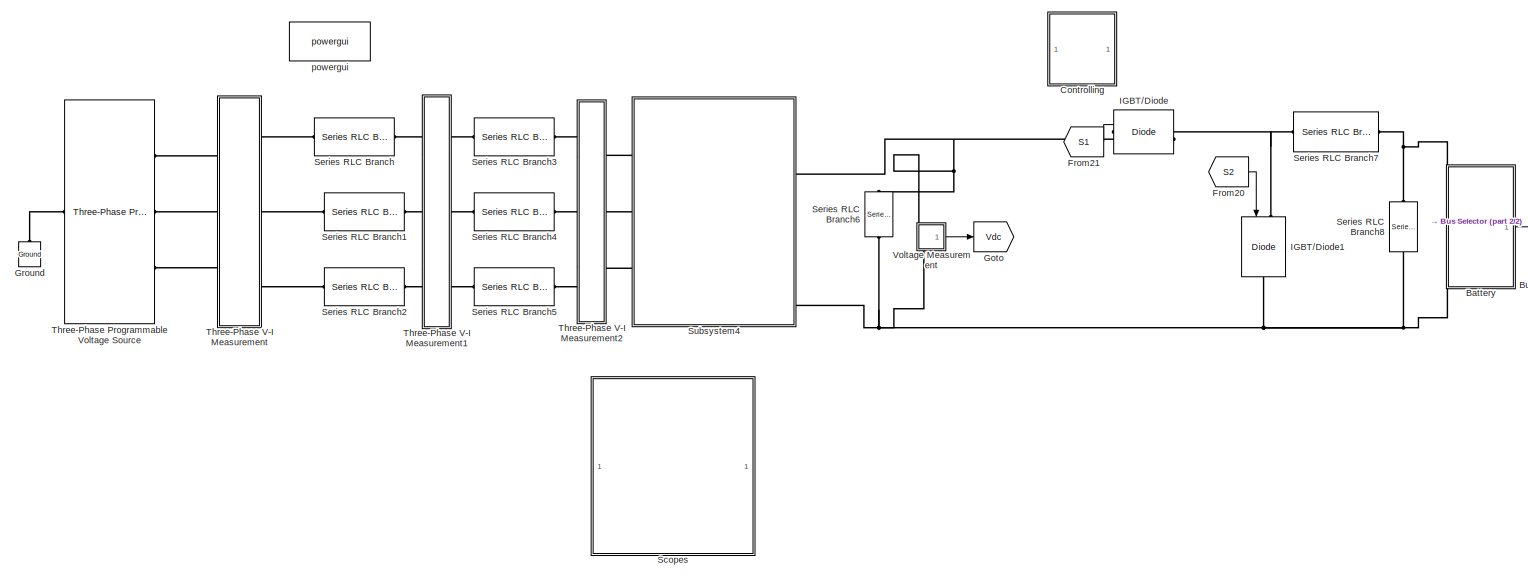
[diagram: root canvas - part 1/2, most of the canvas]
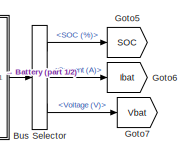
[diagram: root canvas - part 2/2, middle right region]
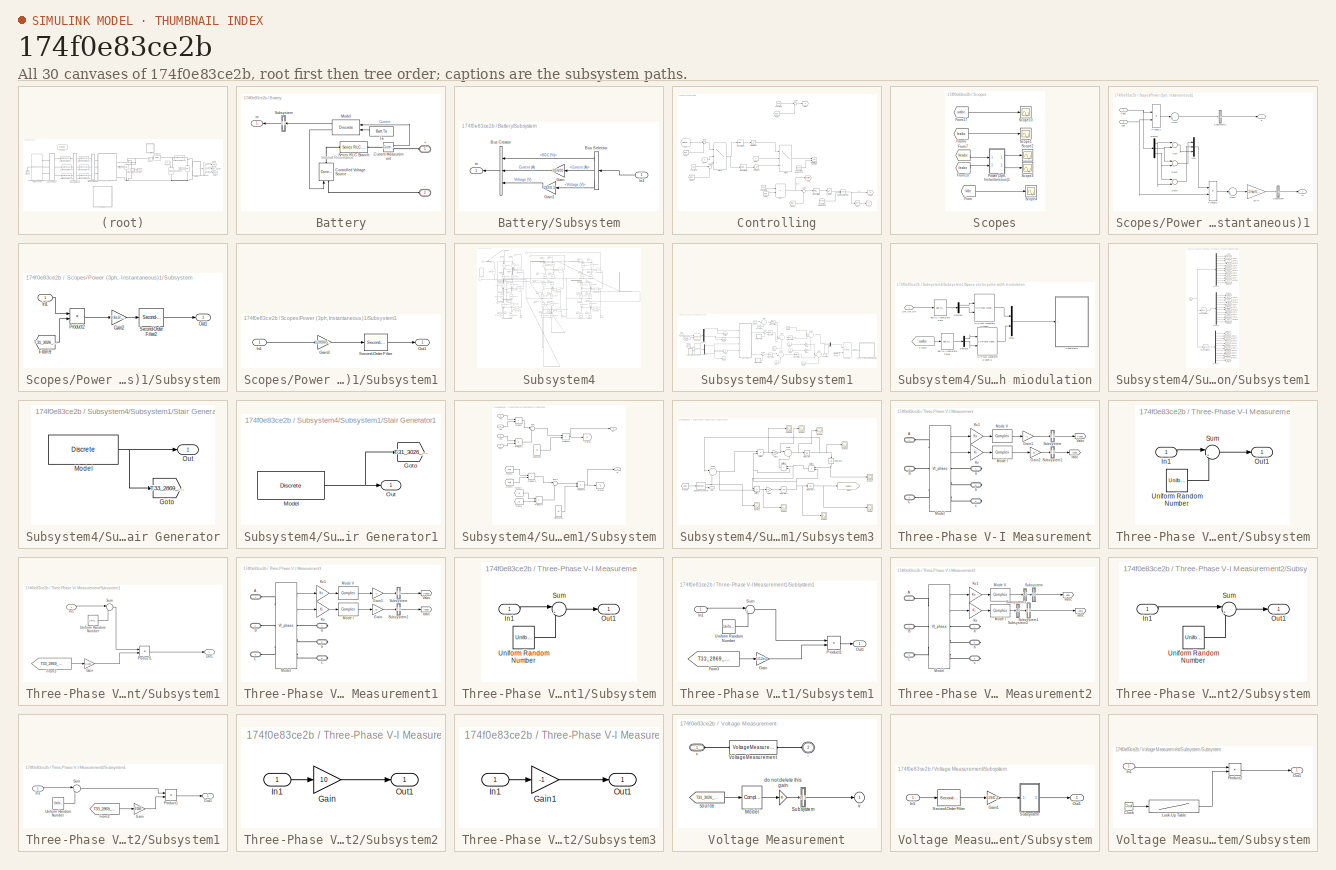
[diagram: thumbnail index - all 30 canvases of the model, root first then tree order]
MODEL slx_174f0e83ce2b
KIND model
CONFIG AbsTol = auto
CONFIG EnableMultiTasking = off
CONFIG FixedStep = auto
CONFIG MaxStep = auto
CONFIG MinStep = auto
CONFIG RelTol = 50e-6
CONFIG SampleTimeConstraint = Unconstrained
CONFIG Solver = VariableStepAuto
CONFIG SolverName = VariableStepAuto
CONFIG StartTime = 0
CONFIG StopTime = 1.6
BLOCK [SubSystem] Battery
  CloseFcn = sps_rtmsupport('CloseFcn',gcbh);
  CopyFcn = sps_rtmsupport('CopyFcn',gcbh);
  DeleteFcn = sps_rtmsupport('DeleteFcn',gcbh);
  DialogController = POWERSYS.PowerSysDialog
  InitFcn = BatteryCback(gcb,1)
  LoadFcn = sps_rtmsupport('LoadFcn',gcbh); BatteryLoadFcn(gcb)
  ModelCloseFcn = sps_rtmsupport('ModelCloseFcn',gcbh);
  NameChangeFcn = sps_rtmsupport('NameChangeFcn',gcbh);
  OpenFcn = sps_rtmsupport('OpenFcn',gcbh, [1,2,3,4,9,18]);
  Ports = [0, 1, 0, 0, 0, 2]
  PostSaveFcn = sps_rtmsupport('PostSaveFcn',gcbh);
  PreCopyFcn = sps_rtmsupport('PreCopyFcn',gcbh);
  PreDeleteFcn = sps_rtmsupport('PreDeleteFcn',gcbh);
  PreSaveFcn = sps_rtmsupport('PreSaveFcn',gcbh);
  RequestExecContextInheritance = off
  StartFcn = sps_rtmsupport('StartFcn',gcbh);
  StopFcn = sps_rtmsupport('StopFcn',gcbh);
  UndoDeleteFcn = sps_rtmsupport('UndoDeleteFcn',gcbh);
BLOCK [PMIOPort] Battery/+
  Side = Left
  Tag = PMCPort
BLOCK [PMIOPort] Battery/-
  Port = 2
  Side = Left
  Tag = PMCPort
BLOCK [Reference] Battery/Controlled Voltage Source  REF=powerlib/Electrical
Sources/Controlled Voltage Source
  Ports = [1, 0, 0, 0, 0, 1, 1]
  SourceBlock = powerlib/Electrical\nSources/Controlled Voltage Source
  SourceProductBaseCode = PS
  SourceProductName = Simscape Power Systems
  SourceType = Controlled Voltage Source
BLOCK [Reference] Battery/Current Measurement  REF=powerlib/Measurements/Current Measurement
  Ports = [0, 1, 0, 0, 0, 1, 1]
  SourceBlock = powerlib/Measurements/Current Measurement
  SourceProductBaseCode = PS
  SourceProductName = Simscape Power Systems
  SourceType = Current Measurement
BLOCK [Reference] Battery/Model  REF=spsBatteryModel/Discrete
  Ports = [2, 2]
  SourceBlock = spsBatteryModel/Discrete
  SourceType = SubSystem
BLOCK [Reference] Battery/Series RLC Branch  REF=powerlib/Elements/Series RLC Branch
  Ports = [0, 0, 0, 0, 0, 1, 1]
  SourceBlock = powerlib/Elements/Series RLC Branch
  SourceProductBaseCode = PS
  SourceProductName = Simscape Power Systems
  SourceType = Series RLC Branch
BLOCK [SubSystem] Battery/Subsystem
  Permissions = NoReadOrWrite
  Ports = [1, 1]
  RequestExecContextInheritance = off
BLOCK [BusCreator] Battery/Subsystem/Bus Creator
  DisplayOption = bar
  InheritFromInputs = on
  Inputs = 3
  Ports = [3, 1]
BLOCK [BusSelector] Battery/Subsystem/Bus Selector
  OutputAsBus = off
  OutputSignals = SOC (%),Current (A),Voltage (V)
  Ports = [1, 3]
BLOCK [Gain] Battery/Subsystem/Gain
  Gain = 20/600
  OutDataTypeStr = Inherit: Inherit via internal rule
  ParamDataTypeStr = Inherit: Inherit via internal rule
  SaturateOnIntegerOverflow = off
BLOCK [Gain] Battery/Subsystem/Gain1
  Gain = 192/0.5
  OutDataTypeStr = Inherit: Inherit via internal rule
  ParamDataTypeStr = Inherit: Inherit via internal rule
  SaturateOnIntegerOverflow = off
BLOCK [Inport] Battery/Subsystem/In1
  IconDisplay = Port number
BLOCK [Outport] Battery/Subsystem/m
  IconDisplay = Port number
BLOCK [Constant] Battery/Ta
  Value = Batt.Ta
BLOCK [Outport] Battery/m
  IconDisplay = Port number
BLOCK [BusSelector] Bus Selector
  OutputAsBus = off
  OutputSignals = SOC (%),Current (A),Voltage (V)
  Ports = [1, 3]
BLOCK [SubSystem] Controlling
  Ports = []
  RequestExecContextInheritance = off
BLOCK [Constant] Controlling/Constant1
  Value = 192
BLOCK [Constant] Controlling/Constant2
  Value = 192
BLOCK [Constant] Controlling/Constant4
  Value = 12e3
BLOCK [Product] Controlling/Divide
  InputSameDT = off
  Inputs = */
  OutDataTypeStr = Inherit: Inherit via internal rule
  Ports = [2, 1]
  RndMeth = Floor
  SaturateOnIntegerOverflow = off
BLOCK [From] Controlling/From
  GotoTag = Ibatref
  TagVisibility = global
BLOCK [From] Controlling/From1
  GotoTag = Ibat
  TagVisibility = global
BLOCK [From] Controlling/From10
  GotoTag = Ibat
  TagVisibility = global
BLOCK [From] Controlling/From2
  GotoTag = Vbat
  TagVisibility = global
BLOCK [From] Controlling/From3
  GotoTag = Vbat
  TagVisibility = global
BLOCK [From] Controlling/From4
  GotoTag = X
  TagVisibility = global
BLOCK [From] Controlling/From5
  GotoTag = X
  TagVisibility = global
BLOCK [From] Controlling/From9
  GotoTag = Vbat
  TagVisibility = global
BLOCK [Goto] Controlling/Goto
  GotoTag = Ibatref
  TagVisibility = global
BLOCK [Goto] Controlling/Goto1
  GotoTag = X
  TagVisibility = global
BLOCK [Goto] Controlling/Goto8
  GotoTag = S2
  TagVisibility = global
BLOCK [Logic] Controlling/NOT
  AllPortsSameDT = off
  IconShape = distinctive
  Operator = NOT
  OutDataTypeStr = boolean
  Ports = [1, 1]
BLOCK [Reference] Controlling/PID Controller1  REF=simulink/Continuous/PID Controller
  Ports = [1, 1]
  SourceBlock = simulink/Continuous/PID Controller
  SourceProductBaseCode = SL
  SourceProductName = Simulink
  SourceType = PID 1dof
BLOCK [Reference] Controlling/PID Controller2  REF=simulink/Continuous/PID Controller
  Ports = [1, 1]
  SourceBlock = simulink/Continuous/PID Controller
  SourceProductBaseCode = SL
  SourceProductName = Simulink
  SourceType = PID 1dof
BLOCK [Reference] Controlling/PID Controller5  REF=simulink/Continuous/PID Controller
  Ports = [1, 1]
  SourceBlock = simulink/Continuous/PID Controller
  SourceProductBaseCode = SL
  SourceProductName = Simulink
  SourceType = PID 1dof
BLOCK [RelationalOperator] Controlling/Relational Operator
  InputSameDT = off
  OutDataTypeStr = boolean
  Ports = [2, 1]
  RndMeth = Simplest
BLOCK [RelationalOperator] Controlling/Relational Operator1
  InputSameDT = off
  OutDataTypeStr = boolean
  Ports = [2, 1]
  RndMeth = Simplest
BLOCK [Reference] Controlling/Repeating Sequence  REF=simulink/Sources/Repeating
Sequence
  Ports = [0, 1]
  SourceBlock = simulink/Sources/Repeating\nSequence
  SourceProductBaseCode = SL
  SourceProductName = Simulink
  SourceType = Repeating table
BLOCK [Reference] Controlling/Repeating Sequence1  REF=simulink/Sources/Repeating
Sequence
  Ports = [0, 1]
  SourceBlock = simulink/Sources/Repeating\nSequence
  SourceProductBaseCode = SL
  SourceProductName = Simulink
  SourceType = Repeating table
BLOCK [Goto] Controlling/S1
  GotoTag = S1
  TagVisibility = global
BLOCK [Saturate] Controlling/Saturation
  InputPortMap = u0
  Ports = [1, 1]
BLOCK [Saturate] Controlling/Saturation1
  InputPortMap = u0
  Ports = [1, 1]
BLOCK [Saturate] Controlling/Saturation2
  InputPortMap = u0
  Ports = [1, 1]
BLOCK [Sum] Controlling/Sum1
  IconShape = round
  InputSameDT = off
  Inputs = |-+
  OutDataTypeStr = Inherit: Inherit via internal rule
  Ports = [2, 1]
  SaturateOnIntegerOverflow = off
BLOCK [Sum] Controlling/Sum2
  IconShape = round
  InputSameDT = off
  Inputs = |-+
  OutDataTypeStr = Inherit: Inherit via internal rule
  Ports = [2, 1]
  SaturateOnIntegerOverflow = off
BLOCK [Sum] Controlling/Sum3
  IconShape = round
  InputSameDT = off
  Inputs = |+-
  OutDataTypeStr = Inherit: Inherit via internal rule
  Ports = [2, 1]
  SaturateOnIntegerOverflow = off
BLOCK [Sum] Controlling/Sum7
  IconShape = round
  InputSameDT = off
  Inputs = |-+
  OutDataTypeStr = Inherit: Inherit via internal rule
  Ports = [2, 1]
  SaturateOnIntegerOverflow = off
BLOCK [Switch] Controlling/Switch
  Criteria = u2 > Threshold
  InputSameDT = off
  SaturateOnIntegerOverflow = off
BLOCK [Switch] Controlling/Switch1
  Criteria = u2 > Threshold
  InputSameDT = off
  SaturateOnIntegerOverflow = off
BLOCK [From] From20
  GotoTag = S2
  TagVisibility = global
BLOCK [From] From21
  GotoTag = S1
  TagVisibility = global
BLOCK [Goto] Goto
  GotoTag = Vdc
  TagVisibility = global
BLOCK [Goto] Goto5
  GotoTag = SOC
  TagVisibility = global
BLOCK [Goto] Goto6
  GotoTag = Ibat
  TagVisibility = global
BLOCK [Goto] Goto7
  GotoTag = Vbat
  TagVisibility = global
BLOCK [Reference] Ground  REF=powerlib/Elements/Ground
  Ports = [0, 0, 0, 0, 0, 1]
  SourceBlock = powerlib/Elements/Ground
  SourceProductBaseCode = PS
  SourceProductName = Simscape Power Systems
  SourceType = Ground
BLOCK [Reference] IGBT//Diode  REF=powerlib/Power
Electronics/IGBT//Diode
  Ports = [1, 0, 0, 0, 0, 1, 1]
  SourceBlock = powerlib/Power\nElectronics/IGBT//Diode
  SourceProductBaseCode = PS
  SourceProductName = Simscape Power Systems
  SourceType = IGBT/Diode
BLOCK [Reference] IGBT//Diode1  REF=powerlib/Power
Electronics/IGBT//Diode
  Ports = [1, 0, 0, 0, 0, 1, 1]
  SourceBlock = powerlib/Power\nElectronics/IGBT//Diode
  SourceProductBaseCode = PS
  SourceProductName = Simscape Power Systems
  SourceType = IGBT/Diode
BLOCK [SubSystem] Scopes
  Ports = []
  RequestExecContextInheritance = off
BLOCK [From] Scopes/From
  GotoTag = Vdc
  TagVisibility = global
BLOCK [From] Scopes/From10
  GotoTag = Ieabc
  TagVisibility = global
BLOCK [From] Scopes/From17
  GotoTag = uabc
  TagVisibility = global
BLOCK [From] Scopes/From6
  GotoTag = Ieabc
  TagVisibility = global
BLOCK [From] Scopes/From7
  GotoTag = Veabc
  TagVisibility = global
BLOCK [SubSystem] Scopes/Power (3ph, Instantaneous)1
  CloseFcn = sps_rtmsupport('CloseFcn', gcbh);
  CopyFcn = sps_rtmsupport('CopyFcn', gcbh);
  DeleteFcn = sps_rtmsupport('DeleteFcn', gcbh);
  DialogController = POWERSYS.PowerSysDialog
  LoadFcn = sps_rtmsupport('LoadFcn', gcbh);
  ModelCloseFcn = sps_rtmsupport('ModelCloseFcn', gcbh);
  NameChangeFcn = sps_rtmsupport('NameChangeFcn', gcbh);
  OpenFcn = sps_rtmsupport('OpenFcn', gcbh, []);
  Ports = [2, 2]
  PostSaveFcn = sps_rtmsupport('PostSaveFcn', gcbh);
  PreCopyFcn = sps_rtmsupport('PreCopyFcn', gcbh);
  PreDeleteFcn = sps_rtmsupport('PreDeleteFcn', gcbh);
  PreSaveFcn = sps_rtmsupport('PreSaveFcn', gcbh);
  RequestExecContextInheritance = off
  StartFcn = sps_rtmsupport('StartFcn', gcbh);
  StopFcn = sps_rtmsupport('StopFcn', gcbh);
  UndoDeleteFcn = sps_rtmsupport('UndoDeleteFcn', gcbh);
BLOCK [Demux] Scopes/Power (3ph, Instantaneous)1/Demux
  Outputs = 3
  Ports = [1, 3]
BLOCK [Inport] Scopes/Power (3ph, Instantaneous)1/Iabc
  IconDisplay = Port number
  Port = 2
  PortDimensions = 3
BLOCK [Mux] Scopes/Power (3ph, Instantaneous)1/Mux
  DisplayOption = bar
  Inputs = 3
  Ports = [3, 1]
BLOCK [Outport] Scopes/Power (3ph, Instantaneous)1/P
  IconDisplay = Port number
BLOCK [Product] Scopes/Power (3ph, Instantaneous)1/Product1
  Ports = [2, 1]
  RndMeth = Floor
BLOCK [Product] Scopes/Power (3ph, Instantaneous)1/Product3
  Ports = [2, 1]
  RndMeth = Floor
BLOCK [Outport] Scopes/Power (3ph, Instantaneous)1/Q
  IconDisplay = Port number
  Port = 2
BLOCK [SubSystem] Scopes/Power (3ph, Instantaneous)1/Subsystem
  Permissions = NoReadOrWrite
  Ports = [1, 1]
  RequestExecContextInheritance = off
BLOCK [From] Scopes/Power (3ph, Instantaneous)1/Subsystem/From9
  GotoTag = T31_3026_183740559423777
  TagVisibility = global
BLOCK [Gain] Scopes/Power (3ph, Instantaneous)1/Subsystem/Gain2
  Gain = 9.8e3/-5.564e7
  OutDataTypeStr = Inherit: Inherit via internal rule
  ParamDataTypeStr = Inherit: Inherit via internal rule
  SaturateOnIntegerOverflow = off
BLOCK [Inport] Scopes/Power (3ph, Instantaneous)1/Subsystem/In1
  IconDisplay = Port number
BLOCK [Outport] Scopes/Power (3ph, Instantaneous)1/Subsystem/Out1
  IconDisplay = Port number
BLOCK [Product] Scopes/Power (3ph, Instantaneous)1/Subsystem/Product2
  InputSameDT = off
  OutDataTypeStr = Inherit: Inherit via internal rule
  Ports = [2, 1]
  RndMeth = Floor
  SaturateOnIntegerOverflow = off
BLOCK [Reference] Scopes/Power (3ph, Instantaneous)1/Subsystem/Second-Order Filter2  REF=powerlib_meascontrol/Filters/Second-Order
Filter
  Ports = [1, 1]
  SourceBlock = powerlib_meascontrol/Filters/Second-Order\nFilter
  SourceProductBaseCode = PS
  SourceProductName = Simscape Power Systems
  SourceType = Second-Order Filter
BLOCK [SubSystem] Scopes/Power (3ph, Instantaneous)1/Subsystem1
  Permissions = NoReadOrWrite
  Ports = [1, 1]
  RequestExecContextInheritance = off
BLOCK [Gain] Scopes/Power (3ph, Instantaneous)1/Subsystem1/Gain3
  Gain = 12000/5390
  OutDataTypeStr = Inherit: Inherit via internal rule
  ParamDataTypeStr = Inherit: Inherit via internal rule
  SaturateOnIntegerOverflow = off
BLOCK [Inport] Scopes/Power (3ph, Instantaneous)1/Subsystem1/In1
  IconDisplay = Port number
BLOCK [Outport] Scopes/Power (3ph, Instantaneous)1/Subsystem1/Out1
  IconDisplay = Port number
BLOCK [Reference] Scopes/Power (3ph, Instantaneous)1/Subsystem1/Second-Order Filter  REF=powerlib_meascontrol/Filters/Second-Order
Filter
  Ports = [1, 1]
  SourceBlock = powerlib_meascontrol/Filters/Second-Order\nFilter
  SourceProductBaseCode = PS
  SourceProductName = Simscape Power Systems
  SourceType = Second-Order Filter
BLOCK [Sum] Scopes/Power (3ph, Instantaneous)1/Sum
  Inputs = +-
  Ports = [2, 1]
BLOCK [Sum] Scopes/Power (3ph, Instantaneous)1/Sum1
  IconShape = round
  Inputs = 1
  Ports = [1, 1]
BLOCK [Sum] Scopes/Power (3ph, Instantaneous)1/Sum4
  IconShape = round
  Inputs = 1
  Ports = [1, 1]
BLOCK [Sum] Scopes/Power (3ph, Instantaneous)1/Sum5
  Inputs = +-
  Ports = [2, 1]
BLOCK [Sum] Scopes/Power (3ph, Instantaneous)1/Sum6
  Inputs = +-
  Ports = [2, 1]
BLOCK [Inport] Scopes/Power (3ph, Instantaneous)1/Vabc
  IconDisplay = Port number
  PortDimensions = 3
BLOCK [Gain] Scopes/Power (3ph, Instantaneous)1/pu->V
  Gain = 1/sqrt(3)
BLOCK [Scope] Scopes/Scope1
  Floating = off
  NumInputPorts = 1
  Ports = [1]
  ScopeSpecificationString = Simulink.scopes.TimeScopeBlockCfg('CurrentConfiguration', extmgr.ConfigurationSet(extmgr.Configuration('Core','General UI',true,'FigureColor',[1 1 1]),extmgr.Configuration('Core','Source UI',true),extmgr.Configuration('Sources','WiredSimulink',true,'DataLoggingVariableName','ScopeData1'),extmgr.Configuration('Visuals','Time Domain',true,'TimeAxisLabels','All','SerializedDisplays',{struct('MinYLimR...<+1625ch>
BLOCK [Scope] Scopes/Scope10
  Floating = off
  NumInputPorts = 1
  Ports = [1]
  ScopeSpecificationString = Simulink.scopes.TimeScopeBlockCfg('CurrentConfiguration', extmgr.ConfigurationSet(extmgr.Configuration('Core','General UI',true,'FigureColor',[1 1 1]),extmgr.Configuration('Core','Source UI',true),extmgr.Configuration('Sources','WiredSimulink',true,'DataLoggingVariableName','ScopeData2'),extmgr.Configuration('Visuals','Time Domain',true,'TimeAxisLabels','All','SerializedDisplays',{struct('MinYLimR...<+1626ch>
BLOCK [Scope] Scopes/Scope2
  Floating = off
  NumInputPorts = 1
  Ports = [1]
  ScopeSpecificationString = Simulink.scopes.TimeScopeBlockCfg('CurrentConfiguration', extmgr.ConfigurationSet(extmgr.Configuration('Core','General UI',true,'FigureColor',[1 1 1]),extmgr.Configuration('Core','Source UI',true),extmgr.Configuration('Sources','WiredSimulink',true,'DataLoggingVariableName','ScopeData3'),extmgr.Configuration('Visuals','Time Domain',true,'TimeAxisLabels','All','SerializedDisplays',{struct('MinYLimR...<+1635ch>
BLOCK [Scope] Scopes/Scope3
  Floating = off
  NumInputPorts = 1
  Ports = [1]
  ScopeSpecificationString = Simulink.scopes.TimeScopeBlockCfg('CurrentConfiguration', extmgr.ConfigurationSet(extmgr.Configuration('Core','General UI',true,'FigureColor',[1 1 1]),extmgr.Configuration('Core','Source UI',true),extmgr.Configuration('Sources','WiredSimulink',true,'DataLoggingVariableName','ScopeData4'),extmgr.Configuration('Visuals','Time Domain',true,'TimeAxisLabels','All','SerializedDisplays',{struct('MinYLimR...<+1639ch>
BLOCK [Scope] Scopes/Scope4
  Floating = off
  NumInputPorts = 1
  Ports = [1]
  ScopeSpecificationString = Simulink.scopes.TimeScopeBlockCfg('CurrentConfiguration', extmgr.ConfigurationSet(extmgr.Configuration('Core','General UI',true,'FigureColor',[1 1 1]),extmgr.Configuration('Core','Source UI',true),extmgr.Configuration('Sources','WiredSimulink',true,'DataLoggingVariableName','ScopeData5'),extmgr.Configuration('Visuals','Time Domain',true,'TimeAxisLabels','All','SerializedDisplays',{struct('MinYLimR...<+1606ch>
BLOCK [Reference] Series RLC Branch  REF=powerlib/Elements/Series RLC Branch
  Ports = [0, 0, 0, 0, 0, 1, 1]
  SourceBlock = powerlib/Elements/Series RLC Branch
  SourceProductBaseCode = PS
  SourceProductName = Simscape Power Systems
  SourceType = Series RLC Branch
BLOCK [Reference] Series RLC Branch1  REF=powerlib/Elements/Series RLC Branch
  Ports = [0, 0, 0, 0, 0, 1, 1]
  SourceBlock = powerlib/Elements/Series RLC Branch
  SourceProductBaseCode = PS
  SourceProductName = Simscape Power Systems
  SourceType = Series RLC Branch
BLOCK [Reference] Series RLC Branch2  REF=powerlib/Elements/Series RLC Branch
  Ports = [0, 0, 0, 0, 0, 1, 1]
  SourceBlock = powerlib/Elements/Series RLC Branch
  SourceProductBaseCode = PS
  SourceProductName = Simscape Power Systems
  SourceType = Series RLC Branch
BLOCK [Reference] Series RLC Branch3  REF=powerlib/Elements/Series RLC Branch
  Ports = [0, 0, 0, 0, 0, 1, 1]
  SourceBlock = powerlib/Elements/Series RLC Branch
  SourceProductBaseCode = PS
  SourceProductName = Simscape Power Systems
  SourceType = Series RLC Branch
BLOCK [Reference] Series RLC Branch4  REF=powerlib/Elements/Series RLC Branch
  Ports = [0, 0, 0, 0, 0, 1, 1]
  SourceBlock = powerlib/Elements/Series RLC Branch
  SourceProductBaseCode = PS
  SourceProductName = Simscape Power Systems
  SourceType = Series RLC Branch
BLOCK [Reference] Series RLC Branch5  REF=powerlib/Elements/Series RLC Branch
  Ports = [0, 0, 0, 0, 0, 1, 1]
  SourceBlock = powerlib/Elements/Series RLC Branch
  SourceProductBaseCode = PS
  SourceProductName = Simscape Power Systems
  SourceType = Series RLC Branch
BLOCK [Reference] Series RLC Branch6  REF=powerlib/Elements/Series RLC Branch
  Ports = [0, 0, 0, 0, 0, 1, 1]
  SourceBlock = powerlib/Elements/Series RLC Branch
  SourceProductBaseCode = PS
  SourceProductName = Simscape Power Systems
  SourceType = Series RLC Branch
BLOCK [Reference] Series RLC Branch7  REF=powerlib/Elements/Series RLC Branch
  Ports = [0, 0, 0, 0, 0, 1, 1]
  SourceBlock = powerlib/Elements/Series RLC Branch
  SourceProductBaseCode = PS
  SourceProductName = Simscape Power Systems
  SourceType = Series RLC Branch
BLOCK [Reference] Series RLC Branch8  REF=powerlib/Elements/Series RLC Branch
  Ports = [0, 0, 0, 0, 0, 1, 1]
  SourceBlock = powerlib/Elements/Series RLC Branch
  SourceProductBaseCode = PS
  SourceProductName = Simscape Power Systems
  SourceType = Series RLC Branch
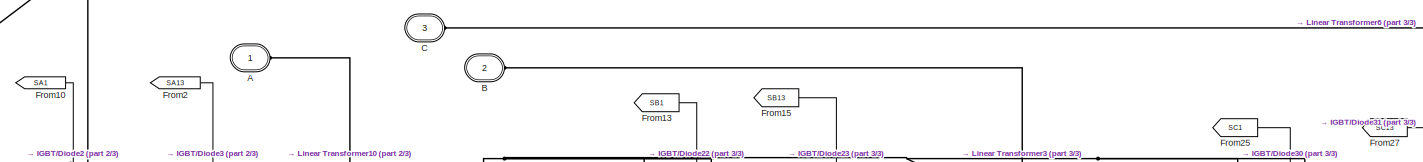
[diagram: Subsystem4 - part 1/3, top center region]
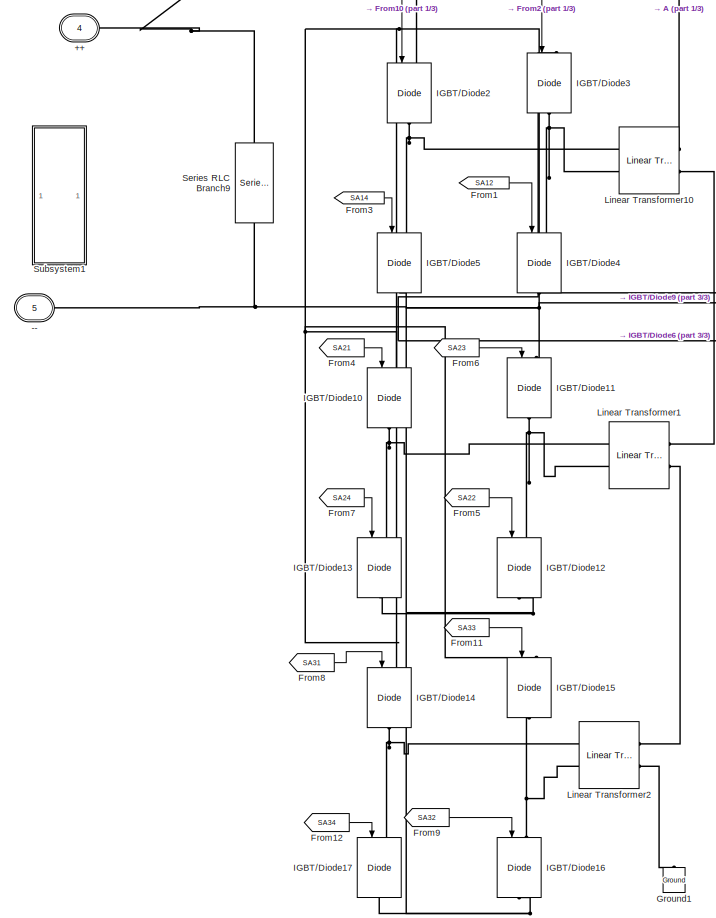
[diagram: Subsystem4 - part 2/3, middle left region]
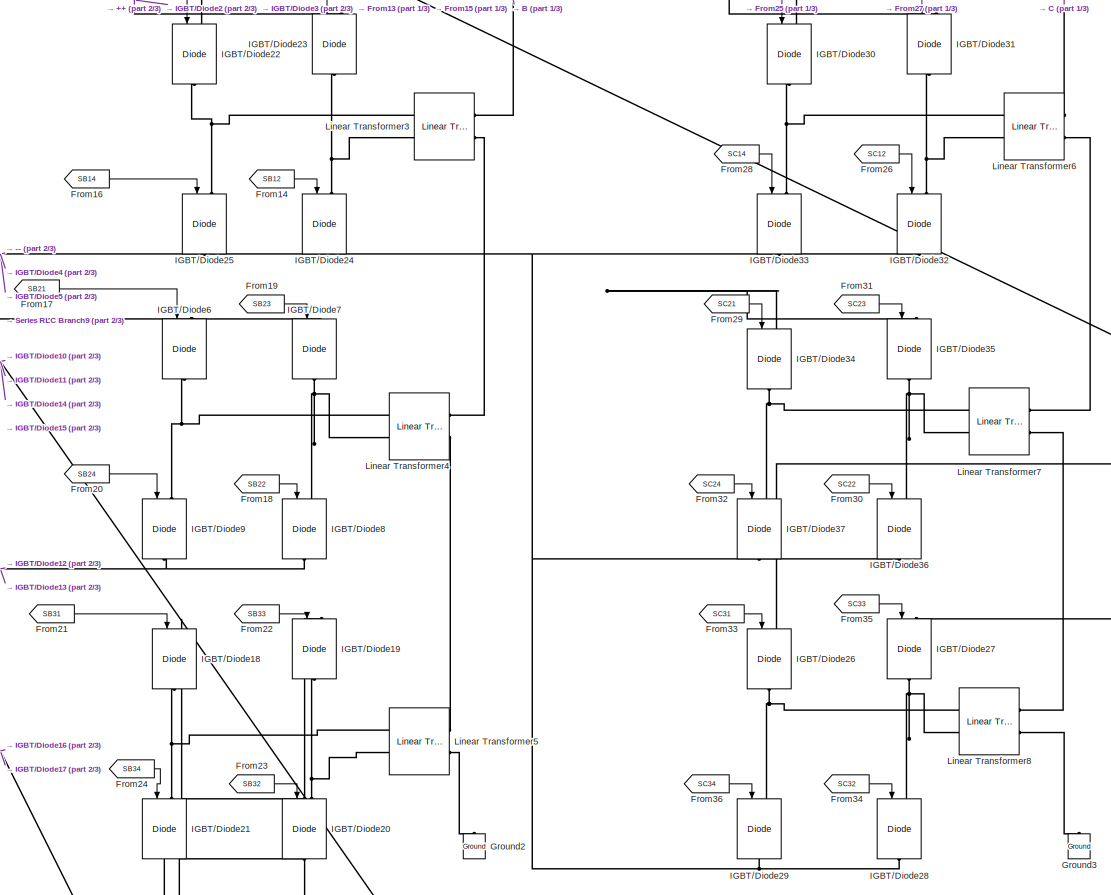
[diagram: Subsystem4 - part 3/3, central region]
BLOCK [SubSystem] Subsystem4
  Ports = [0, 0, 0, 0, 0, 3, 2]
  RequestExecContextInheritance = off
BLOCK [PMIOPort] Subsystem4/++
  Port = 4
  Side = Right
  Tag = PMCPort
BLOCK [PMIOPort] Subsystem4/--
  Port = 5
  Side = Right
  Tag = PMCPort
BLOCK [PMIOPort] Subsystem4/A
  Side = Left
  Tag = PMCPort
BLOCK [PMIOPort] Subsystem4/B
  Port = 2
  Side = Left
  Tag = PMCPort
BLOCK [PMIOPort] Subsystem4/C
  Port = 3
  Side = Left
  Tag = PMCPort
BLOCK [From] Subsystem4/From1
  GotoTag = SA12
  TagVisibility = global
BLOCK [From] Subsystem4/From10
  GotoTag = SA1
  TagVisibility = global
BLOCK [From] Subsystem4/From11
  GotoTag = SA33
  TagVisibility = global
BLOCK [From] Subsystem4/From12
  GotoTag = SA34
  TagVisibility = global
BLOCK [From] Subsystem4/From13
  GotoTag = SB1
  TagVisibility = global
BLOCK [From] Subsystem4/From14
  GotoTag = SB12
  TagVisibility = global
BLOCK [From] Subsystem4/From15
  GotoTag = SB13
  TagVisibility = global
BLOCK [From] Subsystem4/From16
  GotoTag = SB14
  TagVisibility = global
BLOCK [From] Subsystem4/From17
  GotoTag = SB21
  TagVisibility = global
BLOCK [From] Subsystem4/From18
  GotoTag = SB22
  TagVisibility = global
BLOCK [From] Subsystem4/From19
  GotoTag = SB23
  TagVisibility = global
BLOCK [From] Subsystem4/From2
  GotoTag = SA13
  TagVisibility = global
BLOCK [From] Subsystem4/From20
  GotoTag = SB24
  TagVisibility = global
BLOCK [From] Subsystem4/From21
  GotoTag = SB31
  TagVisibility = global
BLOCK [From] Subsystem4/From22
  GotoTag = SB33
  TagVisibility = global
BLOCK [From] Subsystem4/From23
  GotoTag = SB32
  TagVisibility = global
BLOCK [From] Subsystem4/From24
  GotoTag = SB34
  TagVisibility = global
BLOCK [From] Subsystem4/From25
  GotoTag = SC1
  TagVisibility = global
BLOCK [From] Subsystem4/From26
  GotoTag = SC12
  TagVisibility = global
BLOCK [From] Subsystem4/From27
  GotoTag = SC13
  TagVisibility = global
BLOCK [From] Subsystem4/From28
  GotoTag = SC14
  TagVisibility = global
BLOCK [From] Subsystem4/From29
  GotoTag = SC21
  TagVisibility = global
BLOCK [From] Subsystem4/From3
  GotoTag = SA14
  TagVisibility = global
BLOCK [From] Subsystem4/From30
  GotoTag = SC22
  TagVisibility = global
BLOCK [From] Subsystem4/From31
  GotoTag = SC23
  TagVisibility = global
BLOCK [From] Subsystem4/From32
  GotoTag = SC24
  TagVisibility = global
BLOCK [From] Subsystem4/From33
  GotoTag = SC31
  TagVisibility = global
BLOCK [From] Subsystem4/From34
  GotoTag = SC32
  TagVisibility = global
BLOCK [From] Subsystem4/From35
  GotoTag = SC33
  TagVisibility = global
BLOCK [From] Subsystem4/From36
  GotoTag = SC34
  TagVisibility = global
BLOCK [From] Subsystem4/From4
  GotoTag = SA21
  TagVisibility = global
BLOCK [From] Subsystem4/From5
  GotoTag = SA22
  TagVisibility = global
BLOCK [From] Subsystem4/From6
  GotoTag = SA23
  TagVisibility = global
BLOCK [From] Subsystem4/From7
  GotoTag = SA24
  TagVisibility = global
BLOCK [From] Subsystem4/From8
  GotoTag = SA31
  TagVisibility = global
BLOCK [From] Subsystem4/From9
  GotoTag = SA32
  TagVisibility = global
BLOCK [Reference] Subsystem4/Ground1  REF=powerlib/Elements/Ground
  Ports = [0, 0, 0, 0, 0, 1]
  SourceBlock = powerlib/Elements/Ground
  SourceProductBaseCode = PS
  SourceProductName = Simscape Power Systems
  SourceType = Ground
BLOCK [Reference] Subsystem4/Ground2  REF=powerlib/Elements/Ground
  Ports = [0, 0, 0, 0, 0, 1]
  SourceBlock = powerlib/Elements/Ground
  SourceProductBaseCode = PS
  SourceProductName = Simscape Power Systems
  SourceType = Ground
BLOCK [Reference] Subsystem4/Ground3  REF=powerlib/Elements/Ground
  Ports = [0, 0, 0, 0, 0, 1]
  SourceBlock = powerlib/Elements/Ground
  SourceProductBaseCode = PS
  SourceProductName = Simscape Power Systems
  SourceType = Ground
BLOCK [Reference] Subsystem4/IGBT//Diode10  REF=powerlib/Power
Electronics/IGBT//Diode
  Ports = [1, 0, 0, 0, 0, 1, 1]
  SourceBlock = powerlib/Power\nElectronics/IGBT//Diode
  SourceProductBaseCode = PS
  SourceProductName = Simscape Power Systems
  SourceType = IGBT/Diode
BLOCK [Reference] Subsystem4/IGBT//Diode11  REF=powerlib/Power
Electronics/IGBT//Diode
  Ports = [1, 0, 0, 0, 0, 1, 1]
  SourceBlock = powerlib/Power\nElectronics/IGBT//Diode
  SourceProductBaseCode = PS
  SourceProductName = Simscape Power Systems
  SourceType = IGBT/Diode
BLOCK [Reference] Subsystem4/IGBT//Diode12  REF=powerlib/Power
Electronics/IGBT//Diode
  Ports = [1, 0, 0, 0, 0, 1, 1]
  SourceBlock = powerlib/Power\nElectronics/IGBT//Diode
  SourceProductBaseCode = PS
  SourceProductName = Simscape Power Systems
  SourceType = IGBT/Diode
BLOCK [Reference] Subsystem4/IGBT//Diode13  REF=powerlib/Power
Electronics/IGBT//Diode
  Ports = [1, 0, 0, 0, 0, 1, 1]
  SourceBlock = powerlib/Power\nElectronics/IGBT//Diode
  SourceProductBaseCode = PS
  SourceProductName = Simscape Power Systems
  SourceType = IGBT/Diode
BLOCK [Reference] Subsystem4/IGBT//Diode14  REF=powerlib/Power
Electronics/IGBT//Diode
  Ports = [1, 0, 0, 0, 0, 1, 1]
  SourceBlock = powerlib/Power\nElectronics/IGBT//Diode
  SourceProductBaseCode = PS
  SourceProductName = Simscape Power Systems
  SourceType = IGBT/Diode
BLOCK [Reference] Subsystem4/IGBT//Diode15  REF=powerlib/Power
Electronics/IGBT//Diode
  Ports = [1, 0, 0, 0, 0, 1, 1]
  SourceBlock = powerlib/Power\nElectronics/IGBT//Diode
  SourceProductBaseCode = PS
  SourceProductName = Simscape Power Systems
  SourceType = IGBT/Diode
BLOCK [Reference] Subsystem4/IGBT//Diode16  REF=powerlib/Power
Electronics/IGBT//Diode
  Ports = [1, 0, 0, 0, 0, 1, 1]
  SourceBlock = powerlib/Power\nElectronics/IGBT//Diode
  SourceProductBaseCode = PS
  SourceProductName = Simscape Power Systems
  SourceType = IGBT/Diode
BLOCK [Reference] Subsystem4/IGBT//Diode17  REF=powerlib/Power
Electronics/IGBT//Diode
  Ports = [1, 0, 0, 0, 0, 1, 1]
  SourceBlock = powerlib/Power\nElectronics/IGBT//Diode
  SourceProductBaseCode = PS
  SourceProductName = Simscape Power Systems
  SourceType = IGBT/Diode
BLOCK [Reference] Subsystem4/IGBT//Diode18  REF=powerlib/Power
Electronics/IGBT//Diode
  Ports = [1, 0, 0, 0, 0, 1, 1]
  SourceBlock = powerlib/Power\nElectronics/IGBT//Diode
  SourceProductBaseCode = PS
  SourceProductName = Simscape Power Systems
  SourceType = IGBT/Diode
BLOCK [Reference] Subsystem4/IGBT//Diode19  REF=powerlib/Power
Electronics/IGBT//Diode
  Ports = [1, 0, 0, 0, 0, 1, 1]
  SourceBlock = powerlib/Power\nElectronics/IGBT//Diode
  SourceProductBaseCode = PS
  SourceProductName = Simscape Power Systems
  SourceType = IGBT/Diode
BLOCK [Reference] Subsystem4/IGBT//Diode2  REF=powerlib/Power
Electronics/IGBT//Diode
  Ports = [1, 0, 0, 0, 0, 1, 1]
  SourceBlock = powerlib/Power\nElectronics/IGBT//Diode
  SourceProductBaseCode = PS
  SourceProductName = Simscape Power Systems
  SourceType = IGBT/Diode
BLOCK [Reference] Subsystem4/IGBT//Diode20  REF=powerlib/Power
Electronics/IGBT//Diode
  Ports = [1, 0, 0, 0, 0, 1, 1]
  SourceBlock = powerlib/Power\nElectronics/IGBT//Diode
  SourceProductBaseCode = PS
  SourceProductName = Simscape Power Systems
  SourceType = IGBT/Diode
BLOCK [Reference] Subsystem4/IGBT//Diode21  REF=powerlib/Power
Electronics/IGBT//Diode
  Ports = [1, 0, 0, 0, 0, 1, 1]
  SourceBlock = powerlib/Power\nElectronics/IGBT//Diode
  SourceProductBaseCode = PS
  SourceProductName = Simscape Power Systems
  SourceType = IGBT/Diode
BLOCK [Reference] Subsystem4/IGBT//Diode22  REF=powerlib/Power
Electronics/IGBT//Diode
  Ports = [1, 0, 0, 0, 0, 1, 1]
  SourceBlock = powerlib/Power\nElectronics/IGBT//Diode
  SourceProductBaseCode = PS
  SourceProductName = Simscape Power Systems
  SourceType = IGBT/Diode
BLOCK [Reference] Subsystem4/IGBT//Diode23  REF=powerlib/Power
Electronics/IGBT//Diode
  Ports = [1, 0, 0, 0, 0, 1, 1]
  SourceBlock = powerlib/Power\nElectronics/IGBT//Diode
  SourceProductBaseCode = PS
  SourceProductName = Simscape Power Systems
  SourceType = IGBT/Diode
BLOCK [Reference] Subsystem4/IGBT//Diode24  REF=powerlib/Power
Electronics/IGBT//Diode
  Ports = [1, 0, 0, 0, 0, 1, 1]
  SourceBlock = powerlib/Power\nElectronics/IGBT//Diode
  SourceProductBaseCode = PS
  SourceProductName = Simscape Power Systems
  SourceType = IGBT/Diode
BLOCK [Reference] Subsystem4/IGBT//Diode25  REF=powerlib/Power
Electronics/IGBT//Diode
  Ports = [1, 0, 0, 0, 0, 1, 1]
  SourceBlock = powerlib/Power\nElectronics/IGBT//Diode
  SourceProductBaseCode = PS
  SourceProductName = Simscape Power Systems
  SourceType = IGBT/Diode
BLOCK [Reference] Subsystem4/IGBT//Diode26  REF=powerlib/Power
Electronics/IGBT//Diode
  Ports = [1, 0, 0, 0, 0, 1, 1]
  SourceBlock = powerlib/Power\nElectronics/IGBT//Diode
  SourceProductBaseCode = PS
  SourceProductName = Simscape Power Systems
  SourceType = IGBT/Diode
BLOCK [Reference] Subsystem4/IGBT//Diode27  REF=powerlib/Power
Electronics/IGBT//Diode
  Ports = [1, 0, 0, 0, 0, 1, 1]
  SourceBlock = powerlib/Power\nElectronics/IGBT//Diode
  SourceProductBaseCode = PS
  SourceProductName = Simscape Power Systems
  SourceType = IGBT/Diode
BLOCK [Reference] Subsystem4/IGBT//Diode28  REF=powerlib/Power
Electronics/IGBT//Diode
  Ports = [1, 0, 0, 0, 0, 1, 1]
  SourceBlock = powerlib/Power\nElectronics/IGBT//Diode
  SourceProductBaseCode = PS
  SourceProductName = Simscape Power Systems
  SourceType = IGBT/Diode
BLOCK [Reference] Subsystem4/IGBT//Diode29  REF=powerlib/Power
Electronics/IGBT//Diode
  Ports = [1, 0, 0, 0, 0, 1, 1]
  SourceBlock = powerlib/Power\nElectronics/IGBT//Diode
  SourceProductBaseCode = PS
  SourceProductName = Simscape Power Systems
  SourceType = IGBT/Diode
BLOCK [Reference] Subsystem4/IGBT//Diode3  REF=powerlib/Power
Electronics/IGBT//Diode
  Ports = [1, 0, 0, 0, 0, 1, 1]
  SourceBlock = powerlib/Power\nElectronics/IGBT//Diode
  SourceProductBaseCode = PS
  SourceProductName = Simscape Power Systems
  SourceType = IGBT/Diode
BLOCK [Reference] Subsystem4/IGBT//Diode30  REF=powerlib/Power
Electronics/IGBT//Diode
  Ports = [1, 0, 0, 0, 0, 1, 1]
  SourceBlock = powerlib/Power\nElectronics/IGBT//Diode
  SourceProductBaseCode = PS
  SourceProductName = Simscape Power Systems
  SourceType = IGBT/Diode
BLOCK [Reference] Subsystem4/IGBT//Diode31  REF=powerlib/Power
Electronics/IGBT//Diode
  Ports = [1, 0, 0, 0, 0, 1, 1]
  SourceBlock = powerlib/Power\nElectronics/IGBT//Diode
  SourceProductBaseCode = PS
  SourceProductName = Simscape Power Systems
  SourceType = IGBT/Diode
BLOCK [Reference] Subsystem4/IGBT//Diode32  REF=powerlib/Power
Electronics/IGBT//Diode
  Ports = [1, 0, 0, 0, 0, 1, 1]
  SourceBlock = powerlib/Power\nElectronics/IGBT//Diode
  SourceProductBaseCode = PS
  SourceProductName = Simscape Power Systems
  SourceType = IGBT/Diode
BLOCK [Reference] Subsystem4/IGBT//Diode33  REF=powerlib/Power
Electronics/IGBT//Diode
  Ports = [1, 0, 0, 0, 0, 1, 1]
  SourceBlock = powerlib/Power\nElectronics/IGBT//Diode
  SourceProductBaseCode = PS
  SourceProductName = Simscape Power Systems
  SourceType = IGBT/Diode
BLOCK [Reference] Subsystem4/IGBT//Diode34  REF=powerlib/Power
Electronics/IGBT//Diode
  Ports = [1, 0, 0, 0, 0, 1, 1]
  SourceBlock = powerlib/Power\nElectronics/IGBT//Diode
  SourceProductBaseCode = PS
  SourceProductName = Simscape Power Systems
  SourceType = IGBT/Diode
BLOCK [Reference] Subsystem4/IGBT//Diode35  REF=powerlib/Power
Electronics/IGBT//Diode
  Ports = [1, 0, 0, 0, 0, 1, 1]
  SourceBlock = powerlib/Power\nElectronics/IGBT//Diode
  SourceProductBaseCode = PS
  SourceProductName = Simscape Power Systems
  SourceType = IGBT/Diode
BLOCK [Reference] Subsystem4/IGBT//Diode36  REF=powerlib/Power
Electronics/IGBT//Diode
  Ports = [1, 0, 0, 0, 0, 1, 1]
  SourceBlock = powerlib/Power\nElectronics/IGBT//Diode
  SourceProductBaseCode = PS
  SourceProductName = Simscape Power Systems
  SourceType = IGBT/Diode
BLOCK [Reference] Subsystem4/IGBT//Diode37  REF=powerlib/Power
Electronics/IGBT//Diode
  Ports = [1, 0, 0, 0, 0, 1, 1]
  SourceBlock = powerlib/Power\nElectronics/IGBT//Diode
  SourceProductBaseCode = PS
  SourceProductName = Simscape Power Systems
  SourceType = IGBT/Diode
BLOCK [Reference] Subsystem4/IGBT//Diode4  REF=powerlib/Power
Electronics/IGBT//Diode
  Ports = [1, 0, 0, 0, 0, 1, 1]
  SourceBlock = powerlib/Power\nElectronics/IGBT//Diode
  SourceProductBaseCode = PS
  SourceProductName = Simscape Power Systems
  SourceType = IGBT/Diode
BLOCK [Reference] Subsystem4/IGBT//Diode5  REF=powerlib/Power
Electronics/IGBT//Diode
  Ports = [1, 0, 0, 0, 0, 1, 1]
  SourceBlock = powerlib/Power\nElectronics/IGBT//Diode
  SourceProductBaseCode = PS
  SourceProductName = Simscape Power Systems
  SourceType = IGBT/Diode
BLOCK [Reference] Subsystem4/IGBT//Diode6  REF=powerlib/Power
Electronics/IGBT//Diode
  Ports = [1, 0, 0, 0, 0, 1, 1]
  SourceBlock = powerlib/Power\nElectronics/IGBT//Diode
  SourceProductBaseCode = PS
  SourceProductName = Simscape Power Systems
  SourceType = IGBT/Diode
BLOCK [Reference] Subsystem4/IGBT//Diode7  REF=powerlib/Power
Electronics/IGBT//Diode
  Ports = [1, 0, 0, 0, 0, 1, 1]
  SourceBlock = powerlib/Power\nElectronics/IGBT//Diode
  SourceProductBaseCode = PS
  SourceProductName = Simscape Power Systems
  SourceType = IGBT/Diode
BLOCK [Reference] Subsystem4/IGBT//Diode8  REF=powerlib/Power
Electronics/IGBT//Diode
  Ports = [1, 0, 0, 0, 0, 1, 1]
  SourceBlock = powerlib/Power\nElectronics/IGBT//Diode
  SourceProductBaseCode = PS
  SourceProductName = Simscape Power Systems
  SourceType = IGBT/Diode
BLOCK [Reference] Subsystem4/IGBT//Diode9  REF=powerlib/Power
Electronics/IGBT//Diode
  Ports = [1, 0, 0, 0, 0, 1, 1]
  SourceBlock = powerlib/Power\nElectronics/IGBT//Diode
  SourceProductBaseCode = PS
  SourceProductName = Simscape Power Systems
  SourceType = IGBT/Diode
BLOCK [Reference] Subsystem4/Linear Transformer1  REF=powerlib/Elements/Linear Transformer
  Ports = [0, 0, 0, 0, 0, 2, 2]
  SourceBlock = powerlib/Elements/Linear Transformer
  SourceProductBaseCode = PS
  SourceProductName = Simscape Power Systems
  SourceType = Linear Transformer
BLOCK [Reference] Subsystem4/Linear Transformer10  REF=powerlib/Elements/Linear Transformer
  Ports = [0, 0, 0, 0, 0, 2, 2]
  SourceBlock = powerlib/Elements/Linear Transformer
  SourceProductBaseCode = PS
  SourceProductName = Simscape Power Systems
  SourceType = Linear Transformer
BLOCK [Reference] Subsystem4/Linear Transformer2  REF=powerlib/Elements/Linear Transformer
  Ports = [0, 0, 0, 0, 0, 2, 2]
  SourceBlock = powerlib/Elements/Linear Transformer
  SourceProductBaseCode = PS
  SourceProductName = Simscape Power Systems
  SourceType = Linear Transformer
BLOCK [Reference] Subsystem4/Linear Transformer3  REF=powerlib/Elements/Linear Transformer
  Ports = [0, 0, 0, 0, 0, 2, 2]
  SourceBlock = powerlib/Elements/Linear Transformer
  SourceProductBaseCode = PS
  SourceProductName = Simscape Power Systems
  SourceType = Linear Transformer
BLOCK [Reference] Subsystem4/Linear Transformer4  REF=powerlib/Elements/Linear Transformer
  Ports = [0, 0, 0, 0, 0, 2, 2]
  SourceBlock = powerlib/Elements/Linear Transformer
  SourceProductBaseCode = PS
  SourceProductName = Simscape Power Systems
  SourceType = Linear Transformer
BLOCK [Reference] Subsystem4/Linear Transformer5  REF=powerlib/Elements/Linear Transformer
  Ports = [0, 0, 0, 0, 0, 2, 2]
  SourceBlock = powerlib/Elements/Linear Transformer
  SourceProductBaseCode = PS
  SourceProductName = Simscape Power Systems
  SourceType = Linear Transformer
BLOCK [Reference] Subsystem4/Linear Transformer6  REF=powerlib/Elements/Linear Transformer
  Ports = [0, 0, 0, 0, 0, 2, 2]
  SourceBlock = powerlib/Elements/Linear Transformer
  SourceProductBaseCode = PS
  SourceProductName = Simscape Power Systems
  SourceType = Linear Transformer
BLOCK [Reference] Subsystem4/Linear Transformer7  REF=powerlib/Elements/Linear Transformer
  Ports = [0, 0, 0, 0, 0, 2, 2]
  SourceBlock = powerlib/Elements/Linear Transformer
  SourceProductBaseCode = PS
  SourceProductName = Simscape Power Systems
  SourceType = Linear Transformer
BLOCK [Reference] Subsystem4/Linear Transformer8  REF=powerlib/Elements/Linear Transformer
  Ports = [0, 0, 0, 0, 0, 2, 2]
  SourceBlock = powerlib/Elements/Linear Transformer
  SourceProductBaseCode = PS
  SourceProductName = Simscape Power Systems
  SourceType = Linear Transformer
BLOCK [Reference] Subsystem4/Series RLC Branch9  REF=powerlib/Elements/Series RLC Branch
  Ports = [0, 0, 0, 0, 0, 1, 1]
  SourceBlock = powerlib/Elements/Series RLC Branch
  SourceProductBaseCode = PS
  SourceProductName = Simscape Power Systems
  SourceType = Series RLC Branch
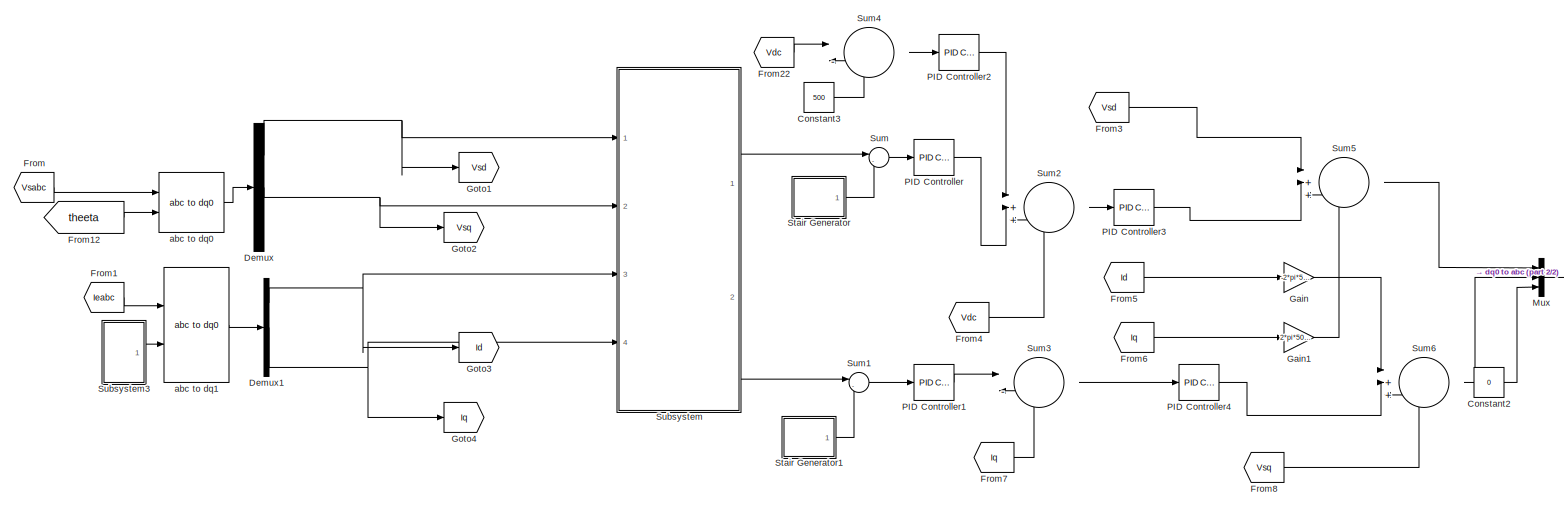
[diagram: Subsystem4/Subsystem1 - part 1/2, most of the canvas]
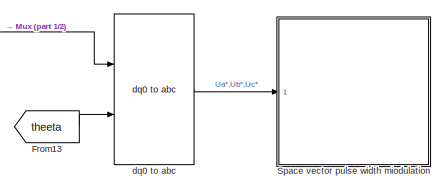
[diagram: Subsystem4/Subsystem1 - part 2/2, bottom right region]
BLOCK [SubSystem] Subsystem4/Subsystem1
  Ports = []
  RequestExecContextInheritance = off
BLOCK [Constant] Subsystem4/Subsystem1/Constant2
  Value = 0
BLOCK [Constant] Subsystem4/Subsystem1/Constant3
  Value = 500
BLOCK [Demux] Subsystem4/Subsystem1/Demux
  DisplayOption = bar
  Outputs = 3
  Ports = [1, 3]
BLOCK [Demux] Subsystem4/Subsystem1/Demux1
  DisplayOption = bar
  Outputs = 3
  Ports = [1, 3]
BLOCK [From] Subsystem4/Subsystem1/From
  GotoTag = Vsabc
  TagVisibility = global
BLOCK [From] Subsystem4/Subsystem1/From1
  GotoTag = Ieabc
  TagVisibility = global
BLOCK [From] Subsystem4/Subsystem1/From12
  GotoTag = theeta
  TagVisibility = global
BLOCK [From] Subsystem4/Subsystem1/From13
  GotoTag = theeta
  TagVisibility = global
BLOCK [From] Subsystem4/Subsystem1/From22
  GotoTag = Vdc
  TagVisibility = global
BLOCK [From] Subsystem4/Subsystem1/From3
  GotoTag = Vsd
  TagVisibility = global
BLOCK [From] Subsystem4/Subsystem1/From4
  GotoTag = Vdc
  TagVisibility = global
BLOCK [From] Subsystem4/Subsystem1/From5
  GotoTag = Id
  TagVisibility = global
BLOCK [From] Subsystem4/Subsystem1/From6
  GotoTag = Iq
  TagVisibility = global
BLOCK [From] Subsystem4/Subsystem1/From7
  GotoTag = Iq
  TagVisibility = global
BLOCK [From] Subsystem4/Subsystem1/From8
  GotoTag = Vsq
  TagVisibility = global
BLOCK [Gain] Subsystem4/Subsystem1/Gain
  Gain = -2*pi*50*2.5e-3
  OutDataTypeStr = Inherit: Inherit via internal rule
  ParamDataTypeStr = Inherit: Inherit via internal rule
  SaturateOnIntegerOverflow = off
BLOCK [Gain] Subsystem4/Subsystem1/Gain1
  Gain = 2*pi*50*2.5e-3
  OutDataTypeStr = Inherit: Inherit via internal rule
  ParamDataTypeStr = Inherit: Inherit via internal rule
  SaturateOnIntegerOverflow = off
BLOCK [Goto] Subsystem4/Subsystem1/Goto1
  GotoTag = Vsd
  TagVisibility = global
BLOCK [Goto] Subsystem4/Subsystem1/Goto2
  GotoTag = Vsq
  TagVisibility = global
BLOCK [Goto] Subsystem4/Subsystem1/Goto3
  GotoTag = Id
  TagVisibility = global
BLOCK [Goto] Subsystem4/Subsystem1/Goto4
  GotoTag = Iq
  TagVisibility = global
BLOCK [Mux] Subsystem4/Subsystem1/Mux
  DisplayOption = bar
  Inputs = 3
  Ports = [3, 1]
BLOCK [Reference] Subsystem4/Subsystem1/PID Controller  REF=simulink/Continuous/PID Controller
  Ports = [1, 1]
  SourceBlock = simulink/Continuous/PID Controller
  SourceProductBaseCode = SL
  SourceProductName = Simulink
  SourceType = PID 1dof
BLOCK [Reference] Subsystem4/Subsystem1/PID Controller1  REF=simulink/Continuous/PID Controller
  Ports = [1, 1]
  SourceBlock = simulink/Continuous/PID Controller
  SourceProductBaseCode = SL
  SourceProductName = Simulink
  SourceType = PID 1dof
BLOCK [Reference] Subsystem4/Subsystem1/PID Controller2  REF=simulink/Continuous/PID Controller
  Ports = [1, 1]
  SourceBlock = simulink/Continuous/PID Controller
  SourceProductBaseCode = SL
  SourceProductName = Simulink
  SourceType = PID 1dof
BLOCK [Reference] Subsystem4/Subsystem1/PID Controller3  REF=simulink/Continuous/PID Controller
  Ports = [1, 1]
  SourceBlock = simulink/Continuous/PID Controller
  SourceProductBaseCode = SL
  SourceProductName = Simulink
  SourceType = PID 1dof
BLOCK [Reference] Subsystem4/Subsystem1/PID Controller4  REF=simulink/Continuous/PID Controller
  Ports = [1, 1]
  SourceBlock = simulink/Continuous/PID Controller
  SourceProductBaseCode = SL
  SourceProductName = Simulink
  SourceType = PID 1dof
BLOCK [SubSystem] Subsystem4/Subsystem1/Space vector pulse width miodulation
  Ports = [1]
  RequestExecContextInheritance = off
BLOCK [Demux] Subsystem4/Subsystem1/Space vector pulse width miodulation/Demux2
  DisplayOption = bar
  Outputs = 3
  Ports = [1, 3]
BLOCK [Demux] Subsystem4/Subsystem1/Space vector pulse width miodulation/Demux3
  DisplayOption = bar
  Outputs = 3
  Ports = [1, 3]
BLOCK [From] Subsystem4/Subsystem1/Space vector pulse width miodulation/From9
  GotoTag = uabc
  TagVisibility = global
BLOCK [Mux] Subsystem4/Subsystem1/Space vector pulse width miodulation/Mux1
  DisplayOption = bar
  Inputs = 2
  Ports = [2, 1]
BLOCK [Reference] Subsystem4/Subsystem1/Space vector pulse width miodulation/SVPWM Generator (2-Level)  REF=powerlib_meascontrol/Pulse & Signal
Generators/SVPWM Generator
(2-Level)
  Ports = [2, 1]
  SourceBlock = powerlib_meascontrol/Pulse & Signal\nGenerators/SVPWM Generator\n(2-Level)
  SourceProductBaseCode = PS
  SourceProductName = Simscape Power Systems
  SourceType = SVPWM Generator (2-Level)
BLOCK [Reference] Subsystem4/Subsystem1/Space vector pulse width miodulation/SVPWM Generator (2-Level)1  REF=powerlib_meascontrol/Pulse & Signal
Generators/SVPWM Generator
(2-Level)
  Ports = [2, 1]
  SourceBlock = powerlib_meascontrol/Pulse & Signal\nGenerators/SVPWM Generator\n(2-Level)
  SourceProductBaseCode = PS
  SourceProductName = Simscape Power Systems
  SourceType = SVPWM Generator (2-Level)
BLOCK [SubSystem] Subsystem4/Subsystem1/Space vector pulse width miodulation/Subsystem1
  Ports = [1]
  RequestExecContextInheritance = off
BLOCK [Demux] Subsystem4/Subsystem1/Space vector pulse width miodulation/Subsystem1/Demux4
  DisplayOption = bar
  Outputs = 12
  Ports = [1, 12]
BLOCK [Demux] Subsystem4/Subsystem1/Space vector pulse width miodulation/Subsystem1/Demux5
  DisplayOption = bar
  Outputs = 12
  Ports = [1, 12]
BLOCK [Demux] Subsystem4/Subsystem1/Space vector pulse width miodulation/Subsystem1/Demux6
  DisplayOption = bar
  Outputs = 12
  Ports = [1, 12]
BLOCK [Goto] Subsystem4/Subsystem1/Space vector pulse width miodulation/Subsystem1/Goto10
  GotoTag = SA12
  TagVisibility = global
BLOCK [Goto] Subsystem4/Subsystem1/Space vector pulse width miodulation/Subsystem1/Goto11
  GotoTag = SA13
  TagVisibility = global
BLOCK [Goto] Subsystem4/Subsystem1/Space vector pulse width miodulation/Subsystem1/Goto12
  GotoTag = SA14
  TagVisibility = global
BLOCK [Goto] Subsystem4/Subsystem1/Space vector pulse width miodulation/Subsystem1/Goto13
  GotoTag = SA22
  TagVisibility = global
BLOCK [Goto] Subsystem4/Subsystem1/Space vector pulse width miodulation/Subsystem1/Goto14
  GotoTag = SA23
  TagVisibility = global
BLOCK [Goto] Subsystem4/Subsystem1/Space vector pulse width miodulation/Subsystem1/Goto15
  GotoTag = SA24
  TagVisibility = global
BLOCK [Goto] Subsystem4/Subsystem1/Space vector pulse width miodulation/Subsystem1/Goto16
  GotoTag = SA21
  TagVisibility = global
BLOCK [Goto] Subsystem4/Subsystem1/Space vector pulse width miodulation/Subsystem1/Goto17
  GotoTag = SA32
  TagVisibility = global
BLOCK [Goto] Subsystem4/Subsystem1/Space vector pulse width miodulation/Subsystem1/Goto18
  GotoTag = SA33
  TagVisibility = global
BLOCK [Goto] Subsystem4/Subsystem1/Space vector pulse width miodulation/Subsystem1/Goto19
  GotoTag = SA34
  TagVisibility = global
BLOCK [Goto] Subsystem4/Subsystem1/Space vector pulse width miodulation/Subsystem1/Goto20
  GotoTag = SA31
  TagVisibility = global
BLOCK [Goto] Subsystem4/Subsystem1/Space vector pulse width miodulation/Subsystem1/Goto21
  GotoTag = SB12
  TagVisibility = global
BLOCK [Goto] Subsystem4/Subsystem1/Space vector pulse width miodulation/Subsystem1/Goto22
  GotoTag = SB13
  TagVisibility = global
BLOCK [Goto] Subsystem4/Subsystem1/Space vector pulse width miodulation/Subsystem1/Goto23
  GotoTag = SB14
  TagVisibility = global
BLOCK [Goto] Subsystem4/Subsystem1/Space vector pulse width miodulation/Subsystem1/Goto24
  GotoTag = SB22
  TagVisibility = global
BLOCK [Goto] Subsystem4/Subsystem1/Space vector pulse width miodulation/Subsystem1/Goto25
  GotoTag = SB23
  TagVisibility = global
BLOCK [Goto] Subsystem4/Subsystem1/Space vector pulse width miodulation/Subsystem1/Goto26
  GotoTag = SB24
  TagVisibility = global
BLOCK [Goto] Subsystem4/Subsystem1/Space vector pulse width miodulation/Subsystem1/Goto27
  GotoTag = SB21
  TagVisibility = global
BLOCK [Goto] Subsystem4/Subsystem1/Space vector pulse width miodulation/Subsystem1/Goto28
  GotoTag = SB32
  TagVisibility = global
BLOCK [Goto] Subsystem4/Subsystem1/Space vector pulse width miodulation/Subsystem1/Goto29
  GotoTag = SB33
  TagVisibility = global
BLOCK [Goto] Subsystem4/Subsystem1/Space vector pulse width miodulation/Subsystem1/Goto30
  GotoTag = SB34
  TagVisibility = global
BLOCK [Goto] Subsystem4/Subsystem1/Space vector pulse width miodulation/Subsystem1/Goto31
  GotoTag = SB31
  TagVisibility = global
BLOCK [Goto] Subsystem4/Subsystem1/Space vector pulse width miodulation/Subsystem1/Goto32
  GotoTag = SB1
  TagVisibility = global
BLOCK [Goto] Subsystem4/Subsystem1/Space vector pulse width miodulation/Subsystem1/Goto33
  GotoTag = SC12
  TagVisibility = global
BLOCK [Goto] Subsystem4/Subsystem1/Space vector pulse width miodulation/Subsystem1/Goto34
  GotoTag = SC13
  TagVisibility = global
BLOCK [Goto] Subsystem4/Subsystem1/Space vector pulse width miodulation/Subsystem1/Goto35
  GotoTag = SC14
  TagVisibility = global
BLOCK [Goto] Subsystem4/Subsystem1/Space vector pulse width miodulation/Subsystem1/Goto36
  GotoTag = SC22
  TagVisibility = global
BLOCK [Goto] Subsystem4/Subsystem1/Space vector pulse width miodulation/Subsystem1/Goto37
  GotoTag = SC23
  TagVisibility = global
BLOCK [Goto] Subsystem4/Subsystem1/Space vector pulse width miodulation/Subsystem1/Goto38
  GotoTag = SC24
  TagVisibility = global
BLOCK [Goto] Subsystem4/Subsystem1/Space vector pulse width miodulation/Subsystem1/Goto39
  GotoTag = SC21
  TagVisibility = global
BLOCK [Goto] Subsystem4/Subsystem1/Space vector pulse width miodulation/Subsystem1/Goto40
  GotoTag = SC32
  TagVisibility = global
BLOCK [Goto] Subsystem4/Subsystem1/Space vector pulse width miodulation/Subsystem1/Goto41
  GotoTag = SC33
  TagVisibility = global
BLOCK [Goto] Subsystem4/Subsystem1/Space vector pulse width miodulation/Subsystem1/Goto42
  GotoTag = SC34
  TagVisibility = global
BLOCK [Goto] Subsystem4/Subsystem1/Space vector pulse width miodulation/Subsystem1/Goto43
  GotoTag = SC31
  TagVisibility = global
BLOCK [Goto] Subsystem4/Subsystem1/Space vector pulse width miodulation/Subsystem1/Goto44
  GotoTag = SC1
  TagVisibility = global
BLOCK [Goto] Subsystem4/Subsystem1/Space vector pulse width miodulation/Subsystem1/Goto8
  GotoTag = SA1
  TagVisibility = global
BLOCK [Inport] Subsystem4/Subsystem1/Space vector pulse width miodulation/Subsystem1/In1
  IconDisplay = Port number
BLOCK [TransportDelay] Subsystem4/Subsystem1/Space vector pulse width miodulation/Subsystem1/Transport Delay
  DelayTime = 120*0.02/360
  Ports = [1, 1]
BLOCK [TransportDelay] Subsystem4/Subsystem1/Space vector pulse width miodulation/Subsystem1/Transport Delay1
  DelayTime = 240*0.02/360
  Ports = [1, 1]
BLOCK [Inport] Subsystem4/Subsystem1/Space vector pulse width miodulation/Ua*,Ub*,Uc*
  IconDisplay = Port number
BLOCK [Reference] Subsystem4/Subsystem1/Space vector pulse width miodulation/abc to Alpha-Beta-Zero  REF=powerlib_meascontrol/Transformations/abc to
Alpha-Beta-Zero
  Ports = [1, 1]
  SourceBlock = powerlib_meascontrol/Transformations/abc to\nAlpha-Beta-Zero
  SourceProductBaseCode = PS
  SourceProductName = Simscape Power Systems
  SourceType = abc to Alpha-Beta-Zero Transformation
BLOCK [Reference] Subsystem4/Subsystem1/Space vector pulse width miodulation/abc to Alpha-Beta-Zero1  REF=powerlib_meascontrol/Transformations/abc to
Alpha-Beta-Zero
  Ports = [1, 1]
  SourceBlock = powerlib_meascontrol/Transformations/abc to\nAlpha-Beta-Zero
  SourceProductBaseCode = PS
  SourceProductName = Simscape Power Systems
  SourceType = abc to Alpha-Beta-Zero Transformation
BLOCK [SubSystem] Subsystem4/Subsystem1/Stair Generator
  CloseFcn = sps_rtmsupport('CloseFcn', gcbh);
  CopyFcn = sps_rtmsupport('CopyFcn', gcbh);
  DeleteFcn = sps_rtmsupport('DeleteFcn', gcbh);
  DialogController = POWERSYS.PowerSysDialog
  LoadFcn = sps_rtmsupport('LoadFcn', gcbh);
  ModelCloseFcn = sps_rtmsupport('ModelCloseFcn', gcbh);
  NameChangeFcn = sps_rtmsupport('NameChangeFcn', gcbh);
  OpenFcn = sps_rtmsupport('OpenFcn', gcbh, []);
  Ports = [0, 1]
  PostSaveFcn = sps_rtmsupport('PostSaveFcn', gcbh);
  PreCopyFcn = sps_rtmsupport('PreCopyFcn', gcbh);
  PreDeleteFcn = sps_rtmsupport('PreDeleteFcn', gcbh);
  PreSaveFcn = sps_rtmsupport('PreSaveFcn', gcbh);
  RequestExecContextInheritance = off
  StartFcn = sps_rtmsupport('StartFcn', gcbh);
  StopFcn = sps_rtmsupport('StopFcn', gcbh);
  UndoDeleteFcn = sps_rtmsupport('UndoDeleteFcn', gcbh);
BLOCK [Goto] Subsystem4/Subsystem1/Stair Generator/Goto
  GotoTag = T33_2869_1657168141875555
  TagVisibility = global
BLOCK [Reference] Subsystem4/Subsystem1/Stair Generator/Model  REF=spsStairGeneratorModel/Discrete
  Ports = [0, 1]
  SourceBlock = spsStairGeneratorModel/Discrete
  SourceType = SubSystem
BLOCK [Outport] Subsystem4/Subsystem1/Stair Generator/Out
  IconDisplay = Port number
  SampleTime = Ts
BLOCK [SubSystem] Subsystem4/Subsystem1/Stair Generator1
  CloseFcn = sps_rtmsupport('CloseFcn', gcbh);
  CopyFcn = sps_rtmsupport('CopyFcn', gcbh);
  DeleteFcn = sps_rtmsupport('DeleteFcn', gcbh);
  DialogController = POWERSYS.PowerSysDialog
  LoadFcn = sps_rtmsupport('LoadFcn', gcbh);
  ModelCloseFcn = sps_rtmsupport('ModelCloseFcn', gcbh);
  NameChangeFcn = sps_rtmsupport('NameChangeFcn', gcbh);
  OpenFcn = sps_rtmsupport('OpenFcn', gcbh, []);
  Ports = [0, 1]
  PostSaveFcn = sps_rtmsupport('PostSaveFcn', gcbh);
  PreCopyFcn = sps_rtmsupport('PreCopyFcn', gcbh);
  PreDeleteFcn = sps_rtmsupport('PreDeleteFcn', gcbh);
  PreSaveFcn = sps_rtmsupport('PreSaveFcn', gcbh);
  RequestExecContextInheritance = off
  StartFcn = sps_rtmsupport('StartFcn', gcbh);
  StopFcn = sps_rtmsupport('StopFcn', gcbh);
  UndoDeleteFcn = sps_rtmsupport('UndoDeleteFcn', gcbh);
BLOCK [Goto] Subsystem4/Subsystem1/Stair Generator1/Goto
  GotoTag = T31_3026_183740559423777
  TagVisibility = global
BLOCK [Reference] Subsystem4/Subsystem1/Stair Generator1/Model  REF=spsStairGeneratorModel/Discrete
  Ports = [0, 1]
  SourceBlock = spsStairGeneratorModel/Discrete
  SourceType = SubSystem
BLOCK [Outport] Subsystem4/Subsystem1/Stair Generator1/Out
  IconDisplay = Port number
  SampleTime = Ts
BLOCK [SubSystem] Subsystem4/Subsystem1/Subsystem
  Ports = [4, 2]
  RequestExecContextInheritance = off
BLOCK [Constant] Subsystem4/Subsystem1/Subsystem/Constant
  Value = 3/2
BLOCK [Constant] Subsystem4/Subsystem1/Subsystem/Constant1
  Value = 3/2
BLOCK [From] Subsystem4/Subsystem1/Subsystem/From2
  GotoTag = Vsd
  TagVisibility = global
BLOCK [From] Subsystem4/Subsystem1/Subsystem/From3
  GotoTag = Vsq
  TagVisibility = global
BLOCK [From] Subsystem4/Subsystem1/Subsystem/From4
  GotoTag = Id
  TagVisibility = global
BLOCK [From] Subsystem4/Subsystem1/Subsystem/From5
  GotoTag = Iq
  TagVisibility = global
BLOCK [Goto] Subsystem4/Subsystem1/Subsystem/Goto5
  GotoTag = P
  TagVisibility = global
BLOCK [Goto] Subsystem4/Subsystem1/Subsystem/Goto6
  GotoTag = Q
  TagVisibility = global
BLOCK [Inport] Subsystem4/Subsystem1/Subsystem/In1
  IconDisplay = Port number
BLOCK [Inport] Subsystem4/Subsystem1/Subsystem/In2
  IconDisplay = Port number
  Port = 2
BLOCK [Inport] Subsystem4/Subsystem1/Subsystem/In3
  IconDisplay = Port number
  Port = 3
BLOCK [Inport] Subsystem4/Subsystem1/Subsystem/In4
  IconDisplay = Port number
  Port = 4
BLOCK [Outport] Subsystem4/Subsystem1/Subsystem/P
  IconDisplay = Port number
BLOCK [Product] Subsystem4/Subsystem1/Subsystem/Product
  InputSameDT = off
  OutDataTypeStr = Inherit: Inherit via internal rule
  Ports = [2, 1]
  RndMeth = Floor
  SaturateOnIntegerOverflow = off
BLOCK [Product] Subsystem4/Subsystem1/Subsystem/Product1
  InputSameDT = off
  OutDataTypeStr = Inherit: Inherit via internal rule
  Ports = [2, 1]
  RndMeth = Floor
  SaturateOnIntegerOverflow = off
BLOCK [Product] Subsystem4/Subsystem1/Subsystem/Product2
  InputSameDT = off
  OutDataTypeStr = Inherit: Inherit via internal rule
  Ports = [2, 1]
  RndMeth = Floor
  SaturateOnIntegerOverflow = off
BLOCK [Product] Subsystem4/Subsystem1/Subsystem/Product3
  InputSameDT = off
  OutDataTypeStr = Inherit: Inherit via internal rule
  Ports = [2, 1]
  RndMeth = Floor
  SaturateOnIntegerOverflow = off
BLOCK [Product] Subsystem4/Subsystem1/Subsystem/Product4
  InputSameDT = off
  OutDataTypeStr = Inherit: Inherit via internal rule
  Ports = [2, 1]
  RndMeth = Floor
  SaturateOnIntegerOverflow = off
BLOCK [Product] Subsystem4/Subsystem1/Subsystem/Product5
  InputSameDT = off
  OutDataTypeStr = Inherit: Inherit via internal rule
  Ports = [2, 1]
  RndMeth = Floor
  SaturateOnIntegerOverflow = off
BLOCK [Outport] Subsystem4/Subsystem1/Subsystem/Q
  IconDisplay = Port number
  Port = 2
BLOCK [Sum] Subsystem4/Subsystem1/Subsystem/Sum
  IconShape = round
  InputSameDT = off
  Inputs = |++
  OutDataTypeStr = Inherit: Inherit via internal rule
  Ports = [2, 1]
  SaturateOnIntegerOverflow = off
BLOCK [Sum] Subsystem4/Subsystem1/Subsystem/Sum1
  IconShape = round
  InputSameDT = off
  Inputs = |++
  OutDataTypeStr = Inherit: Inherit via internal rule
  Ports = [2, 1]
  SaturateOnIntegerOverflow = off
BLOCK [SubSystem] Subsystem4/Subsystem1/Subsystem3
  Ports = [0, 1]
  RequestExecContextInheritance = off
BLOCK [From] Subsystem4/Subsystem1/Subsystem3/From10
  GotoTag = uabc
  TagVisibility = global
BLOCK [Gain] Subsystem4/Subsystem1/Subsystem3/Gain2
  Gain = 2*0.98
  OutDataTypeStr = Inherit: Inherit via internal rule
  ParamDataTypeStr = Inherit: Inherit via internal rule
  SaturateOnIntegerOverflow = off
BLOCK [Gain] Subsystem4/Subsystem1/Subsystem3/Gain3
  Gain = 0.1
  OutDataTypeStr = Inherit: Inherit via internal rule
  ParamDataTypeStr = Inherit: Inherit via internal rule
  SaturateOnIntegerOverflow = off
BLOCK [Goto] Subsystem4/Subsystem1/Subsystem3/Goto9
  GotoTag = theeta
  TagVisibility = global
BLOCK [Integrator] Subsystem4/Subsystem1/Subsystem3/Integrator
  Ports = [1, 1]
BLOCK [Integrator] Subsystem4/Subsystem1/Subsystem3/Integrator1
  Ports = [1, 1]
BLOCK [Integrator] Subsystem4/Subsystem1/Subsystem3/Integrator2
  Ports = [1, 1]
BLOCK [Integrator] Subsystem4/Subsystem1/Subsystem3/Integrator3
  Ports = [1, 1]
BLOCK [Product] Subsystem4/Subsystem1/Subsystem3/Multiply
  InputSameDT = off
  OutDataTypeStr = Inherit: Inherit via internal rule
  Ports = [2, 1]
  RndMeth = Floor
  SaturateOnIntegerOverflow = off
BLOCK [Product] Subsystem4/Subsystem1/Subsystem3/Multiply1
  InputSameDT = off
  OutDataTypeStr = Inherit: Inherit via internal rule
  Ports = [2, 1]
  RndMeth = Floor
  SaturateOnIntegerOverflow = off
BLOCK [Product] Subsystem4/Subsystem1/Subsystem3/Multiply2
  InputSameDT = off
  OutDataTypeStr = Inherit: Inherit via internal rule
  Ports = [2, 1]
  RndMeth = Floor
  SaturateOnIntegerOverflow = off
BLOCK [Product] Subsystem4/Subsystem1/Subsystem3/Multiply3
  InputSameDT = off
  OutDataTypeStr = Inherit: Inherit via internal rule
  Ports = [2, 1]
  RndMeth = Floor
  SaturateOnIntegerOverflow = off
BLOCK [Outport] Subsystem4/Subsystem1/Subsystem3/Out1
  IconDisplay = Port number
BLOCK [Scope] Subsystem4/Subsystem1/Subsystem3/Scope
  Floating = off
  NumInputPorts = 1
  Ports = [1]
  ScopeSpecificationString = Simulink.scopes.TimeScopeBlockCfg('CurrentConfiguration', extmgr.ConfigurationSet(extmgr.Configuration('Core','General UI',true),extmgr.Configuration('Core','Source UI',true),extmgr.Configuration('Sources','WiredSimulink',true,'DataLoggingVariableName','ScopeData15'),extmgr.Configuration('Visuals','Time Domain',true,'SerializedDisplays',{struct('MinYLimReal','-1.00000','MaxYLimReal','1.00000','YLa...<+1396ch>
BLOCK [Scope] Subsystem4/Subsystem1/Subsystem3/Scope1
  Floating = off
  NumInputPorts = 1
  Ports = [1]
  ScopeSpecificationString = Simulink.scopes.TimeScopeBlockCfg('CurrentConfiguration', extmgr.ConfigurationSet(extmgr.Configuration('Core','General UI',true),extmgr.Configuration('Core','Source UI',true),extmgr.Configuration('Sources','WiredSimulink',true,'DataLoggingVariableName','ScopeData16'),extmgr.Configuration('Visuals','Time Domain',true,'SerializedDisplays',{struct('MinYLimReal','-1.00000','MaxYLimReal','1.00000','YLa...<+1396ch>
BLOCK [Scope] Subsystem4/Subsystem1/Subsystem3/Scope2
  Floating = off
  NumInputPorts = 1
  Ports = [1]
  ScopeSpecificationString = Simulink.scopes.TimeScopeBlockCfg('CurrentConfiguration', extmgr.ConfigurationSet(extmgr.Configuration('Core','General UI',true),extmgr.Configuration('Core','Source UI',true),extmgr.Configuration('Sources','WiredSimulink',true,'DataLoggingVariableName','ScopeData17'),extmgr.Configuration('Visuals','Time Domain',true,'SerializedDisplays',{struct('MinYLimReal','-22.6896','MaxYLimReal','214.20637','Y...<+1412ch>
BLOCK [Scope] Subsystem4/Subsystem1/Subsystem3/Scope3
  Floating = off
  NumInputPorts = 1
  Ports = [1]
  ScopeSpecificationString = Simulink.scopes.TimeScopeBlockCfg('CurrentConfiguration', extmgr.ConfigurationSet(extmgr.Configuration('Core','General UI',true),extmgr.Configuration('Core','Source UI',true),extmgr.Configuration('Sources','WiredSimulink',true,'DataLoggingVariableName','ScopeData18'),extmgr.Configuration('Visuals','Time Domain',true,'SerializedDisplays',{struct('MinYLimReal','-1.00000','MaxYLimReal','1.00000','YLa...<+1394ch>
BLOCK [Scope] Subsystem4/Subsystem1/Subsystem3/Scope4
  Floating = off
  NumInputPorts = 1
  Ports = [1]
  ScopeSpecificationString = Simulink.scopes.TimeScopeBlockCfg('CurrentConfiguration', extmgr.ConfigurationSet(extmgr.Configuration('Core','General UI',true),extmgr.Configuration('Core','Source UI',true),extmgr.Configuration('Sources','WiredSimulink',true,'DataLoggingVariableName','ScopeData19'),extmgr.Configuration('Visuals','Time Domain',true,'SerializedDisplays',{struct('MinYLimReal','-1.00000','MaxYLimReal','1.00000','YLa...<+1396ch>
BLOCK [Scope] Subsystem4/Subsystem1/Subsystem3/Scope5
  Floating = off
  NumInputPorts = 1
  Ports = [1]
  ScopeSpecificationString = Simulink.scopes.TimeScopeBlockCfg('CurrentConfiguration', extmgr.ConfigurationSet(extmgr.Configuration('Core','General UI',true),extmgr.Configuration('Core','Source UI',true),extmgr.Configuration('Sources','WiredSimulink',true,'DataLoggingVariableName','ScopeData20'),extmgr.Configuration('Visuals','Time Domain',true,'SerializedDisplays',{struct('MinYLimReal','-1.00000','MaxYLimReal','1.00000','YLa...<+1395ch>
BLOCK [Scope] Subsystem4/Subsystem1/Subsystem3/Scope6
  Floating = off
  NumInputPorts = 1
  Ports = [1]
  ScopeSpecificationString = Simulink.scopes.TimeScopeBlockCfg('CurrentConfiguration', extmgr.ConfigurationSet(extmgr.Configuration('Core','General UI',true),extmgr.Configuration('Core','Source UI',true),extmgr.Configuration('Sources','WiredSimulink',true,'DataLoggingVariableName','ScopeData21'),extmgr.Configuration('Visuals','Time Domain',true,'SerializedDisplays',{struct('MinYLimReal','-1.00000','MaxYLimReal','1.00000','YLa...<+1393ch>
BLOCK [Scope] Subsystem4/Subsystem1/Subsystem3/Scope7
  Floating = off
  NumInputPorts = 1
  Ports = [1]
  ScopeSpecificationString = Simulink.scopes.TimeScopeBlockCfg('CurrentConfiguration', extmgr.ConfigurationSet(extmgr.Configuration('Core','General UI',true),extmgr.Configuration('Core','Source UI',true),extmgr.Configuration('Sources','WiredSimulink',true,'DataLoggingVariableName','ScopeData22'),extmgr.Configuration('Visuals','Time Domain',true,'SerializedDisplays',{struct('MinYLimReal','-1.00000','MaxYLimReal','1.00000','YLa...<+1390ch>
BLOCK [Scope] Subsystem4/Subsystem1/Subsystem3/Scope8
  Floating = off
  NumInputPorts = 1
  Ports = [1]
  ScopeSpecificationString = Simulink.scopes.TimeScopeBlockCfg('CurrentConfiguration', extmgr.ConfigurationSet(extmgr.Configuration('Core','General UI',true),extmgr.Configuration('Core','Source UI',true),extmgr.Configuration('Sources','WiredSimulink',true,'DataLoggingVariableName','ScopeData23'),extmgr.Configuration('Visuals','Time Domain',true,'SerializedDisplays',{struct('MinYLimReal','-1.00000','MaxYLimReal','1.00000','YLa...<+1418ch>
BLOCK [Reference] Subsystem4/Subsystem1/Subsystem3/Sequence Analyzer  REF=powerlib_meascontrol/Measurements/Sequence Analyzer
  Ports = [1, 2]
  SourceBlock = powerlib_meascontrol/Measurements/Sequence Analyzer
  SourceProductBaseCode = PS
  SourceProductName = Simscape Power Systems
  SourceType = Sequence Analyzer
BLOCK [Sum] Subsystem4/Subsystem1/Subsystem3/Sum8
  IconShape = round
  InputSameDT = off
  Inputs = |-+
  OutDataTypeStr = Inherit: Inherit via internal rule
  Ports = [2, 1]
  SaturateOnIntegerOverflow = off
BLOCK [Sum] Subsystem4/Subsystem1/Subsystem3/Sum9
  IconShape = round
  InputSameDT = off
  Inputs = |-+
  OutDataTypeStr = Inherit: Inherit via internal rule
  Ports = [2, 1]
  SaturateOnIntegerOverflow = off
BLOCK [Sum] Subsystem4/Subsystem1/Sum
  IconShape = round
  InputSameDT = off
  Inputs = |-+
  OutDataTypeStr = Inherit: Inherit via internal rule
  Ports = [2, 1]
  SaturateOnIntegerOverflow = off
BLOCK [Sum] Subsystem4/Subsystem1/Sum1
  IconShape = round
  InputSameDT = off
  Inputs = |-+
  OutDataTypeStr = Inherit: Inherit via internal rule
  Ports = [2, 1]
  SaturateOnIntegerOverflow = off
BLOCK [Sum] Subsystem4/Subsystem1/Sum2
  IconShape = round
  InputSameDT = off
  Inputs = |++-
  OutDataTypeStr = Inherit: Inherit via internal rule
  Ports = [3, 1]
  SaturateOnIntegerOverflow = off
BLOCK [Sum] Subsystem4/Subsystem1/Sum3
  IconShape = round
  InputSameDT = off
  Inputs = |-+
  OutDataTypeStr = Inherit: Inherit via internal rule
  Ports = [2, 1]
  SaturateOnIntegerOverflow = off
BLOCK [Sum] Subsystem4/Subsystem1/Sum4
  IconShape = round
  InputSameDT = off
  Inputs = |-+
  OutDataTypeStr = Inherit: Inherit via internal rule
  Ports = [2, 1]
  SaturateOnIntegerOverflow = off
BLOCK [Sum] Subsystem4/Subsystem1/Sum5
  IconShape = round
  InputSameDT = off
  Inputs = |+++
  OutDataTypeStr = Inherit: Inherit via internal rule
  Ports = [3, 1]
  SaturateOnIntegerOverflow = off
BLOCK [Sum] Subsystem4/Subsystem1/Sum6
  IconShape = round
  InputSameDT = off
  Inputs = |+++
  OutDataTypeStr = Inherit: Inherit via internal rule
  Ports = [3, 1]
  SaturateOnIntegerOverflow = off
BLOCK [Reference] Subsystem4/Subsystem1/abc to dq0  REF=powerlib_meascontrol/Transformations/abc to dq0
  Ports = [2, 1]
  SourceBlock = powerlib_meascontrol/Transformations/abc to dq0
  SourceProductBaseCode = PS
  SourceProductName = Simscape Power Systems
  SourceType = abc to dq0 Transformation
BLOCK [Reference] Subsystem4/Subsystem1/abc to dq1  REF=powerlib_meascontrol/Transformations/abc to dq0
  Ports = [2, 1]
  SourceBlock = powerlib_meascontrol/Transformations/abc to dq0
  SourceProductBaseCode = PS
  SourceProductName = Simscape Power Systems
  SourceType = abc to dq0 Transformation
BLOCK [Reference] Subsystem4/Subsystem1/dq0 to abc  REF=powerlib_meascontrol/Transformations/dq0 to abc
  Ports = [2, 1]
  SourceBlock = powerlib_meascontrol/Transformations/dq0 to abc
  SourceProductBaseCode = PS
  SourceProductName = Simscape Power Systems
  SourceType = dq0 to abc Transformation
BLOCK [Reference] Three-Phase Programmable Voltage Source  REF=powerlib/Electrical
Sources/Three-Phase
Programmable
Voltage Source
  Ports = [0, 0, 0, 0, 0, 1, 3]
  SourceBlock = powerlib/Electrical\nSources/Three-Phase\nProgrammable\nVoltage Source
  SourceProductBaseCode = PS
  SourceProductName = Simscape Power Systems
  SourceType = Three-Phase Programmable Voltage Source
BLOCK [SubSystem] Three-Phase V-I Measurement
  CloseFcn = sps_rtmsupport('CloseFcn',gcbh);
  CopyFcn = sps_rtmsupport('CopyFcn',gcbh); powericon('ThreePhaseVIMeasurementCopy',gcb)
  DeleteFcn = sps_rtmsupport('DeleteFcn',gcbh);
  DialogController = POWERSYS.PowerSysDialog
  LoadFcn = if ~strcmp(get_param(bdroot,'BlockDiagramType'),'library')\n    set_param([gcb,'/Model'],'LinkStatus','restore');\nend\nsps_rtmsupport('LoadFcn',gcbh);
  ModelCloseFcn = sps_rtmsupport('ModelCloseFcn',gcbh);
  NameChangeFcn = sps_rtmsupport('NameChangeFcn',gcbh);
  OpenFcn = sps_rtmsupport('OpenFcn',gcbh, [1 2 4 5 6 7 9 -12 13]);
  Ports = [0, 0, 0, 0, 0, 3, 3]
  PostSaveFcn = sps_rtmsupport('PostSaveFcn',gcbh);
  PreCopyFcn = sps_rtmsupport('PreCopyFcn',gcbh);
  PreDeleteFcn = sps_rtmsupport('PreDeleteFcn',gcbh);
  PreSaveFcn = sps_rtmsupport('PreSaveFcn',gcbh);\nif ~strcmp(get_param(bdroot(gcbh),'BlockDiagramType'),'library')\n    set_param(gcb,'LinkStatus','restore')\nend
  RequestExecContextInheritance = off
  StartFcn = sps_rtmsupport('StartFcn',gcbh);
  StopFcn = sps_rtmsupport('StopFcn',gcbh);
  UndoDeleteFcn = sps_rtmsupport('UndoDeleteFcn',gcbh);
BLOCK [PMIOPort] Three-Phase V-I Measurement/A
  Side = Left
BLOCK [PMIOPort] Three-Phase V-I Measurement/B
  Port = 2
  Side = Left
BLOCK [PMIOPort] Three-Phase V-I Measurement/C
  Port = 3
  Side = Left
BLOCK [Gain] Three-Phase V-I Measurement/Gain1
  Gain = -1
  OutDataTypeStr = Inherit: Inherit via internal rule
  ParamDataTypeStr = Inherit: Inherit via internal rule
  SaturateOnIntegerOverflow = off
BLOCK [Gain] Three-Phase V-I Measurement/Gain2
  Gain = 10
  OutDataTypeStr = Inherit: Inherit via internal rule
  ParamDataTypeStr = Inherit: Inherit via internal rule
  SaturateOnIntegerOverflow = off
BLOCK [Goto] Three-Phase V-I Measurement/Iabc
  GotoTag = Isabc
  TagVisibility = global
BLOCK [Gain] Three-Phase V-I Measurement/Kv
  Gain = Ki
BLOCK [Gain] Three-Phase V-I Measurement/Kv1
  Gain = Kv
BLOCK [Reference] Three-Phase V-I Measurement/Mode I  REF=spsVIMeasurementModel/Complex
  Ports = [1, 1]
  SourceBlock = spsVIMeasurementModel/Complex
  SourceType = SubSystem
BLOCK [Reference] Three-Phase V-I Measurement/Mode V  REF=spsVIMeasurementModel/Complex
  Ports = [1, 1]
  SourceBlock = spsVIMeasurementModel/Complex
  SourceType = SubSystem
BLOCK [Reference] Three-Phase V-I Measurement/Model  REF=spsVIMeasurementModel/VI_phase
  Ports = [0, 2, 0, 0, 0, 3, 3]
  SourceBlock = spsVIMeasurementModel/VI_phase
  SourceType = Simscape Power Systems ST Three-Phase VI Measurement
BLOCK [SubSystem] Three-Phase V-I Measurement/Subsystem
  Permissions = NoReadOrWrite
  Ports = [1, 1]
  RequestExecContextInheritance = off
BLOCK [Inport] Three-Phase V-I Measurement/Subsystem/In1
  IconDisplay = Port number
BLOCK [Outport] Three-Phase V-I Measurement/Subsystem/Out1
  IconDisplay = Port number
BLOCK [Sum] Three-Phase V-I Measurement/Subsystem/Sum
  IconShape = round
  InputSameDT = off
  Inputs = |++
  OutDataTypeStr = Inherit: Inherit via internal rule
  Ports = [2, 1]
  SaturateOnIntegerOverflow = off
BLOCK [UniformRandomNumber] Three-Phase V-I Measurement/Subsystem/Uniform Random Number
  Maximum = 5
  Minimum = -5
  SampleTime = 50e-6
BLOCK [SubSystem] Three-Phase V-I Measurement/Subsystem1
  Permissions = NoReadOrWrite
  Ports = [1, 1]
  RequestExecContextInheritance = off
BLOCK [From] Three-Phase V-I Measurement/Subsystem1/From3
  GotoTag = T33_2869_1657168141875555
  TagVisibility = global
BLOCK [Gain] Three-Phase V-I Measurement/Subsystem1/Gain
  Gain = 1/12e3
  OutDataTypeStr = Inherit: Inherit via internal rule
  ParamDataTypeStr = Inherit: Inherit via internal rule
  SaturateOnIntegerOverflow = off
BLOCK [Inport] Three-Phase V-I Measurement/Subsystem1/In1
  IconDisplay = Port number
BLOCK [Outport] Three-Phase V-I Measurement/Subsystem1/Out1
  IconDisplay = Port number
BLOCK [Product] Three-Phase V-I Measurement/Subsystem1/Product1
  InputSameDT = off
  OutDataTypeStr = Inherit: Inherit via internal rule
  Ports = [2, 1]
  RndMeth = Floor
  SaturateOnIntegerOverflow = off
BLOCK [Sum] Three-Phase V-I Measurement/Subsystem1/Sum
  IconShape = round
  InputSameDT = off
  Inputs = |++
  OutDataTypeStr = Inherit: Inherit via internal rule
  Ports = [2, 1]
  SaturateOnIntegerOverflow = off
BLOCK [UniformRandomNumber] Three-Phase V-I Measurement/Subsystem1/Uniform Random Number
  Maximum = 2
  Minimum = -2
  SampleTime = 50e-6
BLOCK [Goto] Three-Phase V-I Measurement/Vabc
  GotoTag = Vsabc
  TagVisibility = global
BLOCK [PMIOPort] Three-Phase V-I Measurement/a
  Port = 4
  Side = Right
BLOCK [PMIOPort] Three-Phase V-I Measurement/b
  Port = 5
  Side = Right
BLOCK [PMIOPort] Three-Phase V-I Measurement/c
  Port = 6
  Side = Right
BLOCK [SubSystem] Three-Phase V-I Measurement1
  CloseFcn = sps_rtmsupport('CloseFcn',gcbh);
  CopyFcn = sps_rtmsupport('CopyFcn',gcbh); powericon('ThreePhaseVIMeasurementCopy',gcb)
  DeleteFcn = sps_rtmsupport('DeleteFcn',gcbh);
  DialogController = POWERSYS.PowerSysDialog
  LoadFcn = if ~strcmp(get_param(bdroot,'BlockDiagramType'),'library')\n    set_param([gcb,'/Model'],'LinkStatus','restore');\nend\nsps_rtmsupport('LoadFcn',gcbh);
  ModelCloseFcn = sps_rtmsupport('ModelCloseFcn',gcbh);
  NameChangeFcn = sps_rtmsupport('NameChangeFcn',gcbh);
  OpenFcn = sps_rtmsupport('OpenFcn',gcbh, [1 2 4 5 6 7 9 -12 13]);
  Ports = [0, 0, 0, 0, 0, 3, 3]
  PostSaveFcn = sps_rtmsupport('PostSaveFcn',gcbh);
  PreCopyFcn = sps_rtmsupport('PreCopyFcn',gcbh);
  PreDeleteFcn = sps_rtmsupport('PreDeleteFcn',gcbh);
  PreSaveFcn = sps_rtmsupport('PreSaveFcn',gcbh);\nif ~strcmp(get_param(bdroot(gcbh),'BlockDiagramType'),'library')\n    set_param(gcb,'LinkStatus','restore')\nend
  RequestExecContextInheritance = off
  StartFcn = sps_rtmsupport('StartFcn',gcbh);
  StopFcn = sps_rtmsupport('StopFcn',gcbh);
  UndoDeleteFcn = sps_rtmsupport('UndoDeleteFcn',gcbh);
BLOCK [PMIOPort] Three-Phase V-I Measurement1/A
  Side = Left
BLOCK [PMIOPort] Three-Phase V-I Measurement1/B
  Port = 2
  Side = Left
BLOCK [PMIOPort] Three-Phase V-I Measurement1/C
  Port = 3
  Side = Left
BLOCK [Gain] Three-Phase V-I Measurement1/Gain
  Gain = 10
  OutDataTypeStr = Inherit: Inherit via internal rule
  ParamDataTypeStr = Inherit: Inherit via internal rule
  SaturateOnIntegerOverflow = off
BLOCK [Gain] Three-Phase V-I Measurement1/Gain1
  Gain = -1
  OutDataTypeStr = Inherit: Inherit via internal rule
  ParamDataTypeStr = Inherit: Inherit via internal rule
  SaturateOnIntegerOverflow = off
BLOCK [Goto] Three-Phase V-I Measurement1/Iabc
  GotoTag = Ieabc
  TagVisibility = global
BLOCK [Gain] Three-Phase V-I Measurement1/Kv
  Gain = Ki
BLOCK [Gain] Three-Phase V-I Measurement1/Kv1
  Gain = Kv
BLOCK [Reference] Three-Phase V-I Measurement1/Mode I  REF=spsVIMeasurementModel/Complex
  Ports = [1, 1]
  SourceBlock = spsVIMeasurementModel/Complex
  SourceType = SubSystem
BLOCK [Reference] Three-Phase V-I Measurement1/Mode V  REF=spsVIMeasurementModel/Complex
  Ports = [1, 1]
  SourceBlock = spsVIMeasurementModel/Complex
  SourceType = SubSystem
BLOCK [Reference] Three-Phase V-I Measurement1/Model  REF=spsVIMeasurementModel/VI_phase
  Ports = [0, 2, 0, 0, 0, 3, 3]
  SourceBlock = spsVIMeasurementModel/VI_phase
  SourceType = Simscape Power Systems ST Three-Phase VI Measurement
BLOCK [SubSystem] Three-Phase V-I Measurement1/Subsystem
  Permissions = NoReadOrWrite
  Ports = [1, 1]
  RequestExecContextInheritance = off
BLOCK [Inport] Three-Phase V-I Measurement1/Subsystem/In1
  IconDisplay = Port number
BLOCK [Outport] Three-Phase V-I Measurement1/Subsystem/Out1
  IconDisplay = Port number
BLOCK [Sum] Three-Phase V-I Measurement1/Subsystem/Sum
  IconShape = round
  InputSameDT = off
  Inputs = |++
  OutDataTypeStr = Inherit: Inherit via internal rule
  Ports = [2, 1]
  SaturateOnIntegerOverflow = off
BLOCK [UniformRandomNumber] Three-Phase V-I Measurement1/Subsystem/Uniform Random Number
  Maximum = 5
  Minimum = -5
  SampleTime = 50e-6
BLOCK [SubSystem] Three-Phase V-I Measurement1/Subsystem1
  Permissions = NoReadOrWrite
  Ports = [1, 1]
  RequestExecContextInheritance = off
BLOCK [From] Three-Phase V-I Measurement1/Subsystem1/From3
  GotoTag = T33_2869_1657168141875555
  TagVisibility = global
BLOCK [Gain] Three-Phase V-I Measurement1/Subsystem1/Gain
  Gain = 1/12e3
  OutDataTypeStr = Inherit: Inherit via internal rule
  ParamDataTypeStr = Inherit: Inherit via internal rule
  SaturateOnIntegerOverflow = off
BLOCK [Inport] Three-Phase V-I Measurement1/Subsystem1/In1
  IconDisplay = Port number
BLOCK [Outport] Three-Phase V-I Measurement1/Subsystem1/Out1
  IconDisplay = Port number
BLOCK [Product] Three-Phase V-I Measurement1/Subsystem1/Product1
  InputSameDT = off
  OutDataTypeStr = Inherit: Inherit via internal rule
  Ports = [2, 1]
  RndMeth = Floor
  SaturateOnIntegerOverflow = off
BLOCK [Sum] Three-Phase V-I Measurement1/Subsystem1/Sum
  IconShape = round
  InputSameDT = off
  Inputs = |++
  OutDataTypeStr = Inherit: Inherit via internal rule
  Ports = [2, 1]
  SaturateOnIntegerOverflow = off
BLOCK [UniformRandomNumber] Three-Phase V-I Measurement1/Subsystem1/Uniform Random Number
  Maximum = 2
  Minimum = -2
  SampleTime = 50e-6
BLOCK [Goto] Three-Phase V-I Measurement1/Vabc
  GotoTag = Veabc
  TagVisibility = global
BLOCK [PMIOPort] Three-Phase V-I Measurement1/a
  Port = 4
  Side = Right
BLOCK [PMIOPort] Three-Phase V-I Measurement1/b
  Port = 5
  Side = Right
BLOCK [PMIOPort] Three-Phase V-I Measurement1/c
  Port = 6
  Side = Right
BLOCK [SubSystem] Three-Phase V-I Measurement2
  CloseFcn = sps_rtmsupport('CloseFcn',gcbh);
  CopyFcn = sps_rtmsupport('CopyFcn',gcbh); powericon('ThreePhaseVIMeasurementCopy',gcb)
  DeleteFcn = sps_rtmsupport('DeleteFcn',gcbh);
  DialogController = POWERSYS.PowerSysDialog
  LoadFcn = if ~strcmp(get_param(bdroot,'BlockDiagramType'),'library')\n    set_param([gcb,'/Model'],'LinkStatus','restore');\nend\nsps_rtmsupport('LoadFcn',gcbh);
  ModelCloseFcn = sps_rtmsupport('ModelCloseFcn',gcbh);
  NameChangeFcn = sps_rtmsupport('NameChangeFcn',gcbh);
  OpenFcn = sps_rtmsupport('OpenFcn',gcbh, [1 2 4 5 6 7 9 -12 13]);
  Ports = [0, 0, 0, 0, 0, 3, 3]
  PostSaveFcn = sps_rtmsupport('PostSaveFcn',gcbh);
  PreCopyFcn = sps_rtmsupport('PreCopyFcn',gcbh);
  PreDeleteFcn = sps_rtmsupport('PreDeleteFcn',gcbh);
  PreSaveFcn = sps_rtmsupport('PreSaveFcn',gcbh);\nif ~strcmp(get_param(bdroot(gcbh),'BlockDiagramType'),'library')\n    set_param(gcb,'LinkStatus','restore')\nend
  RequestExecContextInheritance = off
  StartFcn = sps_rtmsupport('StartFcn',gcbh);
  StopFcn = sps_rtmsupport('StopFcn',gcbh);
  UndoDeleteFcn = sps_rtmsupport('UndoDeleteFcn',gcbh);
BLOCK [PMIOPort] Three-Phase V-I Measurement2/A
  Side = Left
BLOCK [PMIOPort] Three-Phase V-I Measurement2/B
  Port = 2
  Side = Left
BLOCK [PMIOPort] Three-Phase V-I Measurement2/C
  Port = 3
  Side = Left
BLOCK [Goto] Three-Phase V-I Measurement2/Iabc
  GotoTag = Iabc1
  TagVisibility = global
BLOCK [Gain] Three-Phase V-I Measurement2/Kv
  Gain = Ki
BLOCK [Gain] Three-Phase V-I Measurement2/Kv1
  Gain = Kv
BLOCK [Reference] Three-Phase V-I Measurement2/Mode I  REF=spsVIMeasurementModel/Complex
  Ports = [1, 1]
  SourceBlock = spsVIMeasurementModel/Complex
  SourceType = SubSystem
BLOCK [Reference] Three-Phase V-I Measurement2/Mode V  REF=spsVIMeasurementModel/Complex
  Ports = [1, 1]
  SourceBlock = spsVIMeasurementModel/Complex
  SourceType = SubSystem
BLOCK [Reference] Three-Phase V-I Measurement2/Model  REF=spsVIMeasurementModel/VI_phase
  Ports = [0, 2, 0, 0, 0, 3, 3]
  SourceBlock = spsVIMeasurementModel/VI_phase
  SourceType = Simscape Power Systems ST Three-Phase VI Measurement
BLOCK [SubSystem] Three-Phase V-I Measurement2/Subsystem
  Permissions = NoReadOrWrite
  Ports = [1, 1]
  RequestExecContextInheritance = off
BLOCK [Inport] Three-Phase V-I Measurement2/Subsystem/In1
  IconDisplay = Port number
BLOCK [Outport] Three-Phase V-I Measurement2/Subsystem/Out1
  IconDisplay = Port number
BLOCK [Sum] Three-Phase V-I Measurement2/Subsystem/Sum
  IconShape = round
  InputSameDT = off
  Inputs = |++
  OutDataTypeStr = Inherit: Inherit via internal rule
  Ports = [2, 1]
  SaturateOnIntegerOverflow = off
BLOCK [UniformRandomNumber] Three-Phase V-I Measurement2/Subsystem/Uniform Random Number
  Maximum = 5
  Minimum = -5
  SampleTime = 50e-6
BLOCK [SubSystem] Three-Phase V-I Measurement2/Subsystem1
  Permissions = NoReadOrWrite
  Ports = [1, 1]
  RequestExecContextInheritance = off
BLOCK [From] Three-Phase V-I Measurement2/Subsystem1/From3
  GotoTag = T33_2869_1657168141875555
  TagVisibility = global
BLOCK [Gain] Three-Phase V-I Measurement2/Subsystem1/Gain
  Gain = 1/12e3
  OutDataTypeStr = Inherit: Inherit via internal rule
  ParamDataTypeStr = Inherit: Inherit via internal rule
  SaturateOnIntegerOverflow = off
BLOCK [Inport] Three-Phase V-I Measurement2/Subsystem1/In1
  IconDisplay = Port number
BLOCK [Outport] Three-Phase V-I Measurement2/Subsystem1/Out1
  IconDisplay = Port number
BLOCK [Product] Three-Phase V-I Measurement2/Subsystem1/Product1
  InputSameDT = off
  OutDataTypeStr = Inherit: Inherit via internal rule
  Ports = [2, 1]
  RndMeth = Floor
  SaturateOnIntegerOverflow = off
BLOCK [Sum] Three-Phase V-I Measurement2/Subsystem1/Sum
  IconShape = round
  InputSameDT = off
  Inputs = |++
  OutDataTypeStr = Inherit: Inherit via internal rule
  Ports = [2, 1]
  SaturateOnIntegerOverflow = off
BLOCK [UniformRandomNumber] Three-Phase V-I Measurement2/Subsystem1/Uniform Random Number
  Maximum = 2
  Minimum = -2
  SampleTime = 50e-6
BLOCK [SubSystem] Three-Phase V-I Measurement2/Subsystem2
  Permissions = NoReadOrWrite
  Ports = [1, 1]
  RequestExecContextInheritance = off
BLOCK [Gain] Three-Phase V-I Measurement2/Subsystem2/Gain
  Gain = 10
  OutDataTypeStr = Inherit: Inherit via internal rule
  ParamDataTypeStr = Inherit: Inherit via internal rule
  SaturateOnIntegerOverflow = off
BLOCK [Inport] Three-Phase V-I Measurement2/Subsystem2/In1
  IconDisplay = Port number
BLOCK [Outport] Three-Phase V-I Measurement2/Subsystem2/Out1
  IconDisplay = Port number
BLOCK [SubSystem] Three-Phase V-I Measurement2/Subsystem3
  Permissions = NoReadOrWrite
  Ports = [1, 1]
  RequestExecContextInheritance = off
BLOCK [Gain] Three-Phase V-I Measurement2/Subsystem3/Gain1
  Gain = -1
  OutDataTypeStr = Inherit: Inherit via internal rule
  ParamDataTypeStr = Inherit: Inherit via internal rule
  SaturateOnIntegerOverflow = off
BLOCK [Inport] Three-Phase V-I Measurement2/Subsystem3/In1
  IconDisplay = Port number
BLOCK [Outport] Three-Phase V-I Measurement2/Subsystem3/Out1
  IconDisplay = Port number
BLOCK [Goto] Three-Phase V-I Measurement2/Vabc
  GotoTag = uabc
  TagVisibility = global
BLOCK [PMIOPort] Three-Phase V-I Measurement2/a
  Port = 4
  Side = Right
BLOCK [PMIOPort] Three-Phase V-I Measurement2/b
  Port = 5
  Side = Right
BLOCK [PMIOPort] Three-Phase V-I Measurement2/c
  Port = 6
  Side = Right
BLOCK [SubSystem] Voltage Measurement
  CloseFcn = sps_rtmsupport('CloseFcn',gcbh);
  CopyFcn = sps_rtmsupport('CopyFcn',gcbh); powericon('psbloadfunction',gcb,'Measurement Block','UpdateGotoTag');
  DeleteFcn = sps_rtmsupport('DeleteFcn',gcbh);
  DialogController = POWERSYS.PowerSysDialog
  LoadFcn = sps_rtmsupport('LoadFcn',gcbh);
  ModelCloseFcn = sps_rtmsupport('ModelCloseFcn',gcbh);
  NameChangeFcn = sps_rtmsupport('NameChangeFcn',gcbh);powericon('SetNewGotoTag',[gcb,'/source'],-2);
  OpenFcn = sps_rtmsupport('OpenFcn',gcbh, [1 -2]);
  Ports = [0, 1, 0, 0, 0, 2]
  PostSaveFcn = sps_rtmsupport('PostSaveFcn',gcbh);
  PreCopyFcn = sps_rtmsupport('PreCopyFcn',gcbh);
  PreDeleteFcn = sps_rtmsupport('PreDeleteFcn',gcbh);
  PreSaveFcn = sps_rtmsupport('PreSaveFcn',gcbh);
  RequestExecContextInheritance = off
  StartFcn = sps_rtmsupport('StartFcn',gcbh);
  StopFcn = sps_rtmsupport('StopFcn',gcbh);
  UndoDeleteFcn = sps_rtmsupport('UndoDeleteFcn',gcbh);
  UserDataPersistent = on
BLOCK [PMIOPort] Voltage Measurement/+
  Side = Left
BLOCK [PMIOPort] Voltage Measurement/-
  Port = 2
  Side = Left
BLOCK [Reference] Voltage Measurement/Model  REF=spsMeasurementModel/Complex
  Ports = [1, 1]
  SourceBlock = spsMeasurementModel/Complex
  SourceType = SubSystem
BLOCK [SubSystem] Voltage Measurement/Subsystem
  Permissions = NoReadOrWrite
  Ports = [1, 1]
  RequestExecContextInheritance = off
BLOCK [Gain] Voltage Measurement/Subsystem/Gain1
  Gain = 319/0.2
  OutDataTypeStr = Inherit: Inherit via internal rule
  ParamDataTypeStr = Inherit: Inherit via internal rule
  SaturateOnIntegerOverflow = off
BLOCK [Inport] Voltage Measurement/Subsystem/In1
  IconDisplay = Port number
BLOCK [Outport] Voltage Measurement/Subsystem/Out1
  IconDisplay = Port number
BLOCK [Reference] Voltage Measurement/Subsystem/Second-Order Filter  REF=powerlib_meascontrol/Filters/Second-Order
Filter
  Ports = [1, 1]
  SourceBlock = powerlib_meascontrol/Filters/Second-Order\nFilter
  SourceProductBaseCode = PS
  SourceProductName = Simscape Power Systems
  SourceType = Second-Order Filter
BLOCK [SubSystem] Voltage Measurement/Subsystem/Subsystem
  Ports = [1, 1]
  RequestExecContextInheritance = off
BLOCK [Clock] Voltage Measurement/Subsystem/Subsystem/Clock
BLOCK [Inport] Voltage Measurement/Subsystem/Subsystem/In1
  IconDisplay = Port number
BLOCK [Lookup] Voltage Measurement/Subsystem/Subsystem/Look-Up Table
  InputValues = [0 1.4 1.5 1.501 2]
  Table = [ 1 320/360 320/360 1 1]
BLOCK [Outport] Voltage Measurement/Subsystem/Subsystem/Out1
  IconDisplay = Port number
BLOCK [Product] Voltage Measurement/Subsystem/Subsystem/Product2
  InputSameDT = off
  OutDataTypeStr = Inherit: Inherit via internal rule
  Ports = [2, 1]
  RndMeth = Floor
  SaturateOnIntegerOverflow = off
BLOCK [Reference] Voltage Measurement/VoltageMeasurement  REF=powerlib/Measurements/Voltage Measurement/VoltageMeasurement
  Ports = [0, 0, 0, 0, 0, 1, 1]
  SourceBlock = powerlib/Measurements/Voltage Measurement/VoltageMeasurement
  SourceProductBaseCode = PS
  SourceProductName = Simscape Power Systems
  SourceType = InnerPowersysBlock
BLOCK [Gain] Voltage Measurement/do not delete this gain
  OutDataTypeStr = Inherit: Inherit via internal rule
  ParamDataTypeStr = Inherit: Inherit via internal rule
  SaturateOnIntegerOverflow = off
BLOCK [From] Voltage Measurement/source
  GotoTag = T31_3026_1837405594237
  TagVisibility = global
BLOCK [Outport] Voltage Measurement/v
  IconDisplay = Port number
  InitialOutput = 0
BLOCK [Reference] powergui  REF=powerlib/powergui
  Ports = []
  Priority = 1
  SourceBlock = powerlib/powergui
  SourceProductBaseCode = PS
  SourceProductName = Simscape Power Systems
  SourceType = PSB option menu block
ANNOTATION Battery: Internal Resistance
LINE Battery:1 -> Bus Selector:1
LINE Bus Selector:1 -> Goto5:1
LINE Bus Selector:2 -> Goto6:1
LINE Bus Selector:3 -> Goto7:1
LINE Controlling/Constant1:1 -> Controlling/Sum2:1
LINE Controlling/Constant2:1 -> Controlling/Sum3:1
LINE Controlling/Constant4:1 -> Controlling/Divide:1
NET Controlling/Divide:1 -> Controlling/Goto:1, Controlling/Sum7:1
LINE Controlling/From10:1 -> Controlling/Sum7:2
LINE Controlling/From1:1 -> Controlling/Sum1:2
LINE Controlling/From2:1 -> Controlling/Sum3:2
LINE Controlling/From3:1 -> Controlling/Sum2:2
LINE Controlling/From4:1 -> Controlling/Switch:2
LINE Controlling/From5:1 -> Controlling/Switch1:2
LINE Controlling/From9:1 -> Controlling/Divide:2
LINE Controlling/From:1 -> Controlling/Sum1:1
LINE Controlling/NOT:1 -> Controlling/S1:1
LINE Controlling/PID Controller1:1 -> Controlling/Saturation2:1
LINE Controlling/PID Controller2:1 -> Controlling/Saturation1:1
LINE Controlling/PID Controller5:1 -> Controlling/Saturation:1
NET Controlling/Relational Operator:1 -> Controlling/Goto8:1, Controlling/NOT:1
LINE Controlling/Repeating Sequence1:1 -> Controlling/Relational Operator1:2
LINE Controlling/Repeating Sequence:1 -> Controlling/Relational Operator:2
LINE Controlling/Saturation1:1 -> Controlling/Switch:1
LINE Controlling/Saturation2:1 -> Controlling/Switch:3
LINE Controlling/Saturation:1 -> Controlling/Relational Operator:1
LINE Controlling/Sum1:1 -> Controlling/Switch1:1
LINE Controlling/Sum2:1 -> Controlling/Switch1:3
LINE Controlling/Sum3:1 -> Controlling/Goto1:1
LINE Controlling/Sum7:1 -> Controlling/PID Controller5:1
NET Controlling/Switch1:1 -> Controlling/PID Controller1:1, Controlling/PID Controller2:1
LINE Controlling/Switch:1 -> Controlling/Relational Operator1:1
LINE From20:1 -> IGBT//Diode1:1
LINE From21:1 -> IGBT//Diode:1
LINE Scopes/From10:1 -> Scopes/Power (3ph, Instantaneous)1:2
LINE Scopes/From17:1 -> Scopes/Scope10:1
LINE Scopes/From6:1 -> Scopes/Scope1:1
LINE Scopes/From7:1 -> Scopes/Power (3ph, Instantaneous)1:1
LINE Scopes/From:1 -> Scopes/Scope4:1
LINE Scopes/Power (3ph, Instantaneous)1:1 -> Scopes/Scope2:1
LINE Scopes/Power (3ph, Instantaneous)1:2 -> Scopes/Scope3:1
LINE Subsystem4/From10:1 -> Subsystem4/IGBT//Diode2:1
LINE Subsystem4/From11:1 -> Subsystem4/IGBT//Diode15:1
LINE Subsystem4/From12:1 -> Subsystem4/IGBT//Diode17:1
LINE Subsystem4/From13:1 -> Subsystem4/IGBT//Diode22:1
LINE Subsystem4/From14:1 -> Subsystem4/IGBT//Diode24:1
LINE Subsystem4/From15:1 -> Subsystem4/IGBT//Diode23:1
LINE Subsystem4/From16:1 -> Subsystem4/IGBT//Diode25:1
LINE Subsystem4/From17:1 -> Subsystem4/IGBT//Diode6:1
LINE Subsystem4/From18:1 -> Subsystem4/IGBT//Diode8:1
LINE Subsystem4/From19:1 -> Subsystem4/IGBT//Diode7:1
LINE Subsystem4/From1:1 -> Subsystem4/IGBT//Diode4:1
LINE Subsystem4/From20:1 -> Subsystem4/IGBT//Diode9:1
LINE Subsystem4/From21:1 -> Subsystem4/IGBT//Diode18:1
LINE Subsystem4/From22:1 -> Subsystem4/IGBT//Diode19:1
LINE Subsystem4/From23:1 -> Subsystem4/IGBT//Diode20:1
LINE Subsystem4/From24:1 -> Subsystem4/IGBT//Diode21:1
LINE Subsystem4/From25:1 -> Subsystem4/IGBT//Diode30:1
LINE Subsystem4/From26:1 -> Subsystem4/IGBT//Diode32:1
LINE Subsystem4/From27:1 -> Subsystem4/IGBT//Diode31:1
LINE Subsystem4/From28:1 -> Subsystem4/IGBT//Diode33:1
LINE Subsystem4/From29:1 -> Subsystem4/IGBT//Diode34:1
LINE Subsystem4/From2:1 -> Subsystem4/IGBT//Diode3:1
LINE Subsystem4/From30:1 -> Subsystem4/IGBT//Diode36:1
LINE Subsystem4/From31:1 -> Subsystem4/IGBT//Diode35:1
LINE Subsystem4/From32:1 -> Subsystem4/IGBT//Diode37:1
LINE Subsystem4/From33:1 -> Subsystem4/IGBT//Diode26:1
LINE Subsystem4/From34:1 -> Subsystem4/IGBT//Diode28:1
LINE Subsystem4/From35:1 -> Subsystem4/IGBT//Diode27:1
LINE Subsystem4/From36:1 -> Subsystem4/IGBT//Diode29:1
LINE Subsystem4/From3:1 -> Subsystem4/IGBT//Diode5:1
LINE Subsystem4/From4:1 -> Subsystem4/IGBT//Diode10:1
LINE Subsystem4/From5:1 -> Subsystem4/IGBT//Diode12:1
LINE Subsystem4/From6:1 -> Subsystem4/IGBT//Diode11:1
LINE Subsystem4/From7:1 -> Subsystem4/IGBT//Diode13:1
LINE Subsystem4/From8:1 -> Subsystem4/IGBT//Diode14:1
LINE Subsystem4/From9:1 -> Subsystem4/IGBT//Diode16:1
LINE Subsystem4/Subsystem1/Constant2:1 -> Subsystem4/Subsystem1/Mux:3
LINE Subsystem4/Subsystem1/Constant3:1 -> Subsystem4/Subsystem1/Sum4:2
NET Subsystem4/Subsystem1/Demux1:1 -> Subsystem4/Subsystem1/Goto3:1, Subsystem4/Subsystem1/Subsystem:3
NET Subsystem4/Subsystem1/Demux1:2 -> Subsystem4/Subsystem1/Goto4:1, Subsystem4/Subsystem1/Subsystem:4
NET Subsystem4/Subsystem1/Demux:1 -> Subsystem4/Subsystem1/Goto1:1, Subsystem4/Subsystem1/Subsystem:1
NET Subsystem4/Subsystem1/Demux:2 -> Subsystem4/Subsystem1/Goto2:1, Subsystem4/Subsystem1/Subsystem:2
LINE Subsystem4/Subsystem1/From12:1 -> Subsystem4/Subsystem1/abc to dq0:2
LINE Subsystem4/Subsystem1/From13:1 -> Subsystem4/Subsystem1/dq0 to abc:2
LINE Subsystem4/Subsystem1/From1:1 -> Subsystem4/Subsystem1/abc to dq1:1
LINE Subsystem4/Subsystem1/From22:1 -> Subsystem4/Subsystem1/Sum4:1
LINE Subsystem4/Subsystem1/From3:1 -> Subsystem4/Subsystem1/Sum5:1
LINE Subsystem4/Subsystem1/From4:1 -> Subsystem4/Subsystem1/Sum2:3
LINE Subsystem4/Subsystem1/From5:1 -> Subsystem4/Subsystem1/Gain:1
LINE Subsystem4/Subsystem1/From6:1 -> Subsystem4/Subsystem1/Gain1:1
LINE Subsystem4/Subsystem1/From7:1 -> Subsystem4/Subsystem1/Sum3:2
LINE Subsystem4/Subsystem1/From8:1 -> Subsystem4/Subsystem1/Sum6:3
LINE Subsystem4/Subsystem1/From:1 -> Subsystem4/Subsystem1/abc to dq0:1
LINE Subsystem4/Subsystem1/Gain1:1 -> Subsystem4/Subsystem1/Sum5:3
LINE Subsystem4/Subsystem1/Gain:1 -> Subsystem4/Subsystem1/Sum6:1
LINE Subsystem4/Subsystem1/Mux:1 -> Subsystem4/Subsystem1/dq0 to abc:1
LINE Subsystem4/Subsystem1/PID Controller1:1 -> Subsystem4/Subsystem1/Sum3:1
LINE Subsystem4/Subsystem1/PID Controller2:1 -> Subsystem4/Subsystem1/Sum2:1
LINE Subsystem4/Subsystem1/PID Controller3:1 -> Subsystem4/Subsystem1/Sum5:2
LINE Subsystem4/Subsystem1/PID Controller4:1 -> Subsystem4/Subsystem1/Sum6:2
LINE Subsystem4/Subsystem1/PID Controller:1 -> Subsystem4/Subsystem1/Sum2:2
LINE Subsystem4/Subsystem1/Space vector pulse width miodulation/Demux2:1 -> Subsystem4/Subsystem1/Space vector pulse width miodulation/SVPWM Generator (2-Level)1:1
LINE Subsystem4/Subsystem1/Space vector pulse width miodulation/Demux2:2 -> Subsystem4/Subsystem1/Space vector pulse width miodulation/SVPWM Generator (2-Level)1:2
LINE Subsystem4/Subsystem1/Space vector pulse width miodulation/Demux3:1 -> Subsystem4/Subsystem1/Space vector pulse width miodulation/SVPWM Generator (2-Level):1
LINE Subsystem4/Subsystem1/Space vector pulse width miodulation/Demux3:2 -> Subsystem4/Subsystem1/Space vector pulse width miodulation/SVPWM Generator (2-Level):2
LINE Subsystem4/Subsystem1/Space vector pulse width miodulation/From9:1 -> Subsystem4/Subsystem1/Space vector pulse width miodulation/abc to Alpha-Beta-Zero1:1
LINE Subsystem4/Subsystem1/Space vector pulse width miodulation/Mux1:1 -> Subsystem4/Subsystem1/Space vector pulse width miodulation/Subsystem1:1
LINE Subsystem4/Subsystem1/Space vector pulse width miodulation/SVPWM Generator (2-Level)1:1 -> Subsystem4/Subsystem1/Space vector pulse width miodulation/Mux1:2
LINE Subsystem4/Subsystem1/Space vector pulse width miodulation/SVPWM Generator (2-Level):1 -> Subsystem4/Subsystem1/Space vector pulse width miodulation/Mux1:1
LINE Subsystem4/Subsystem1/Space vector pulse width miodulation/Subsystem1/Demux4:1 -> Subsystem4/Subsystem1/Space vector pulse width miodulation/Subsystem1/Goto8:1
LINE Subsystem4/Subsystem1/Space vector pulse width miodulation/Subsystem1/Demux4:10 -> Subsystem4/Subsystem1/Space vector pulse width miodulation/Subsystem1/Goto17:1
LINE Subsystem4/Subsystem1/Space vector pulse width miodulation/Subsystem1/Demux4:11 -> Subsystem4/Subsystem1/Space vector pulse width miodulation/Subsystem1/Goto18:1
LINE Subsystem4/Subsystem1/Space vector pulse width miodulation/Subsystem1/Demux4:12 -> Subsystem4/Subsystem1/Space vector pulse width miodulation/Subsystem1/Goto19:1
LINE Subsystem4/Subsystem1/Space vector pulse width miodulation/Subsystem1/Demux4:2 -> Subsystem4/Subsystem1/Space vector pulse width miodulation/Subsystem1/Goto10:1
LINE Subsystem4/Subsystem1/Space vector pulse width miodulation/Subsystem1/Demux4:3 -> Subsystem4/Subsystem1/Space vector pulse width miodulation/Subsystem1/Goto11:1
LINE Subsystem4/Subsystem1/Space vector pulse width miodulation/Subsystem1/Demux4:4 -> Subsystem4/Subsystem1/Space vector pulse width miodulation/Subsystem1/Goto12:1
LINE Subsystem4/Subsystem1/Space vector pulse width miodulation/Subsystem1/Demux4:5 -> Subsystem4/Subsystem1/Space vector pulse width miodulation/Subsystem1/Goto16:1
LINE Subsystem4/Subsystem1/Space vector pulse width miodulation/Subsystem1/Demux4:6 -> Subsystem4/Subsystem1/Space vector pulse width miodulation/Subsystem1/Goto13:1
LINE Subsystem4/Subsystem1/Space vector pulse width miodulation/Subsystem1/Demux4:7 -> Subsystem4/Subsystem1/Space vector pulse width miodulation/Subsystem1/Goto14:1
LINE Subsystem4/Subsystem1/Space vector pulse width miodulation/Subsystem1/Demux4:8 -> Subsystem4/Subsystem1/Space vector pulse width miodulation/Subsystem1/Goto15:1
LINE Subsystem4/Subsystem1/Space vector pulse width miodulation/Subsystem1/Demux4:9 -> Subsystem4/Subsystem1/Space vector pulse width miodulation/Subsystem1/Goto20:1
LINE Subsystem4/Subsystem1/Space vector pulse width miodulation/Subsystem1/Demux5:1 -> Subsystem4/Subsystem1/Space vector pulse width miodulation/Subsystem1/Goto32:1
LINE Subsystem4/Subsystem1/Space vector pulse width miodulation/Subsystem1/Demux5:10 -> Subsystem4/Subsystem1/Space vector pulse width miodulation/Subsystem1/Goto28:1
LINE Subsystem4/Subsystem1/Space vector pulse width miodulation/Subsystem1/Demux5:11 -> Subsystem4/Subsystem1/Space vector pulse width miodulation/Subsystem1/Goto29:1
LINE Subsystem4/Subsystem1/Space vector pulse width miodulation/Subsystem1/Demux5:12 -> Subsystem4/Subsystem1/Space vector pulse width miodulation/Subsystem1/Goto30:1
LINE Subsystem4/Subsystem1/Space vector pulse width miodulation/Subsystem1/Demux5:2 -> Subsystem4/Subsystem1/Space vector pulse width miodulation/Subsystem1/Goto21:1
LINE Subsystem4/Subsystem1/Space vector pulse width miodulation/Subsystem1/Demux5:3 -> Subsystem4/Subsystem1/Space vector pulse width miodulation/Subsystem1/Goto22:1
LINE Subsystem4/Subsystem1/Space vector pulse width miodulation/Subsystem1/Demux5:4 -> Subsystem4/Subsystem1/Space vector pulse width miodulation/Subsystem1/Goto23:1
LINE Subsystem4/Subsystem1/Space vector pulse width miodulation/Subsystem1/Demux5:5 -> Subsystem4/Subsystem1/Space vector pulse width miodulation/Subsystem1/Goto27:1
LINE Subsystem4/Subsystem1/Space vector pulse width miodulation/Subsystem1/Demux5:6 -> Subsystem4/Subsystem1/Space vector pulse width miodulation/Subsystem1/Goto24:1
LINE Subsystem4/Subsystem1/Space vector pulse width miodulation/Subsystem1/Demux5:7 -> Subsystem4/Subsystem1/Space vector pulse width miodulation/Subsystem1/Goto25:1
LINE Subsystem4/Subsystem1/Space vector pulse width miodulation/Subsystem1/Demux5:8 -> Subsystem4/Subsystem1/Space vector pulse width miodulation/Subsystem1/Goto26:1
LINE Subsystem4/Subsystem1/Space vector pulse width miodulation/Subsystem1/Demux5:9 -> Subsystem4/Subsystem1/Space vector pulse width miodulation/Subsystem1/Goto31:1
LINE Subsystem4/Subsystem1/Space vector pulse width miodulation/Subsystem1/Demux6:1 -> Subsystem4/Subsystem1/Space vector pulse width miodulation/Subsystem1/Goto44:1
LINE Subsystem4/Subsystem1/Space vector pulse width miodulation/Subsystem1/Demux6:10 -> Subsystem4/Subsystem1/Space vector pulse width miodulation/Subsystem1/Goto40:1
LINE Subsystem4/Subsystem1/Space vector pulse width miodulation/Subsystem1/Demux6:11 -> Subsystem4/Subsystem1/Space vector pulse width miodulation/Subsystem1/Goto41:1
LINE Subsystem4/Subsystem1/Space vector pulse width miodulation/Subsystem1/Demux6:12 -> Subsystem4/Subsystem1/Space vector pulse width miodulation/Subsystem1/Goto42:1
LINE Subsystem4/Subsystem1/Space vector pulse width miodulation/Subsystem1/Demux6:2 -> Subsystem4/Subsystem1/Space vector pulse width miodulation/Subsystem1/Goto33:1
LINE Subsystem4/Subsystem1/Space vector pulse width miodulation/Subsystem1/Demux6:3 -> Subsystem4/Subsystem1/Space vector pulse width miodulation/Subsystem1/Goto34:1
LINE Subsystem4/Subsystem1/Space vector pulse width miodulation/Subsystem1/Demux6:4 -> Subsystem4/Subsystem1/Space vector pulse width miodulation/Subsystem1/Goto35:1
LINE Subsystem4/Subsystem1/Space vector pulse width miodulation/Subsystem1/Demux6:5 -> Subsystem4/Subsystem1/Space vector pulse width miodulation/Subsystem1/Goto39:1
LINE Subsystem4/Subsystem1/Space vector pulse width miodulation/Subsystem1/Demux6:6 -> Subsystem4/Subsystem1/Space vector pulse width miodulation/Subsystem1/Goto36:1
LINE Subsystem4/Subsystem1/Space vector pulse width miodulation/Subsystem1/Demux6:7 -> Subsystem4/Subsystem1/Space vector pulse width miodulation/Subsystem1/Goto37:1
LINE Subsystem4/Subsystem1/Space vector pulse width miodulation/Subsystem1/Demux6:8 -> Subsystem4/Subsystem1/Space vector pulse width miodulation/Subsystem1/Goto38:1
LINE Subsystem4/Subsystem1/Space vector pulse width miodulation/Subsystem1/Demux6:9 -> Subsystem4/Subsystem1/Space vector pulse width miodulation/Subsystem1/Goto43:1
NET Subsystem4/Subsystem1/Space vector pulse width miodulation/Subsystem1/In1:1 -> Subsystem4/Subsystem1/Space vector pulse width miodulation/Subsystem1/Demux4:1, Subsystem4/Subsystem1/Space vector pulse width miodulation/Subsystem1/Transport Delay1:1, Subsystem4/Subsystem1/Space vector pulse width miodulation/Subsystem1/Transport Delay:1
LINE Subsystem4/Subsystem1/Space vector pulse width miodulation/Subsystem1/Transport Delay1:1 -> Subsystem4/Subsystem1/Space vector pulse width miodulation/Subsystem1/Demux6:1
LINE Subsystem4/Subsystem1/Space vector pulse width miodulation/Subsystem1/Transport Delay:1 -> Subsystem4/Subsystem1/Space vector pulse width miodulation/Subsystem1/Demux5:1
LINE Subsystem4/Subsystem1/Space vector pulse width miodulation/Ua*,Ub*,Uc*:1 -> Subsystem4/Subsystem1/Space vector pulse width miodulation/abc to Alpha-Beta-Zero:1
LINE Subsystem4/Subsystem1/Space vector pulse width miodulation/abc to Alpha-Beta-Zero1:1 -> Subsystem4/Subsystem1/Space vector pulse width miodulation/Demux2:1
LINE Subsystem4/Subsystem1/Space vector pulse width miodulation/abc to Alpha-Beta-Zero:1 -> Subsystem4/Subsystem1/Space vector pulse width miodulation/Demux3:1
LINE Subsystem4/Subsystem1/Stair Generator1:1 -> Subsystem4/Subsystem1/Sum1:2
LINE Subsystem4/Subsystem1/Stair Generator:1 -> Subsystem4/Subsystem1/Sum:2
LINE Subsystem4/Subsystem1/Subsystem/Constant1:1 -> Subsystem4/Subsystem1/Subsystem/Product5:2
LINE Subsystem4/Subsystem1/Subsystem/Constant:1 -> Subsystem4/Subsystem1/Subsystem/Product2:2
LINE Subsystem4/Subsystem1/Subsystem/From2:1 -> Subsystem4/Subsystem1/Subsystem/Product3:1
LINE Subsystem4/Subsystem1/Subsystem/From3:1 -> Subsystem4/Subsystem1/Subsystem/Product3:2
LINE Subsystem4/Subsystem1/Subsystem/From4:1 -> Subsystem4/Subsystem1/Subsystem/Product4:1
LINE Subsystem4/Subsystem1/Subsystem/From5:1 -> Subsystem4/Subsystem1/Subsystem/Product4:2
LINE Subsystem4/Subsystem1/Subsystem/In1:1 -> Subsystem4/Subsystem1/Subsystem/Product:1
LINE Subsystem4/Subsystem1/Subsystem/In2:1 -> Subsystem4/Subsystem1/Subsystem/Product:2
LINE Subsystem4/Subsystem1/Subsystem/In3:1 -> Subsystem4/Subsystem1/Subsystem/Product1:1
LINE Subsystem4/Subsystem1/Subsystem/In4:1 -> Subsystem4/Subsystem1/Subsystem/Product1:2
LINE Subsystem4/Subsystem1/Subsystem/Product1:1 -> Subsystem4/Subsystem1/Subsystem/Sum:2
NET Subsystem4/Subsystem1/Subsystem/Product2:1 -> Subsystem4/Subsystem1/Subsystem/Goto5:1, Subsystem4/Subsystem1/Subsystem/P:1
LINE Subsystem4/Subsystem1/Subsystem/Product3:1 -> Subsystem4/Subsystem1/Subsystem/Sum1:1
LINE Subsystem4/Subsystem1/Subsystem/Product4:1 -> Subsystem4/Subsystem1/Subsystem/Sum1:2
NET Subsystem4/Subsystem1/Subsystem/Product5:1 -> Subsystem4/Subsystem1/Subsystem/Goto6:1, Subsystem4/Subsystem1/Subsystem/Q:1
LINE Subsystem4/Subsystem1/Subsystem/Product:1 -> Subsystem4/Subsystem1/Subsystem/Sum:1
LINE Subsystem4/Subsystem1/Subsystem/Sum1:1 -> Subsystem4/Subsystem1/Subsystem/Product5:1
LINE Subsystem4/Subsystem1/Subsystem/Sum:1 -> Subsystem4/Subsystem1/Subsystem/Product2:1
LINE Subsystem4/Subsystem1/Subsystem3/From10:1 -> Subsystem4/Subsystem1/Subsystem3/Sequence Analyzer:1
NET Subsystem4/Subsystem1/Subsystem3/Gain2:1 -> Subsystem4/Subsystem1/Subsystem3/Scope7:1, Subsystem4/Subsystem1/Subsystem3/Sum9:1
LINE Subsystem4/Subsystem1/Subsystem3/Gain3:1 -> Subsystem4/Subsystem1/Subsystem3/Integrator2:1
NET Subsystem4/Subsystem1/Subsystem3/Integrator1:1 -> Subsystem4/Subsystem1/Subsystem3/Multiply1:1, Subsystem4/Subsystem1/Subsystem3/Scope4:1
NET Subsystem4/Subsystem1/Subsystem3/Integrator2:1 -> Subsystem4/Subsystem1/Subsystem3/Integrator3:1, Subsystem4/Subsystem1/Subsystem3/Multiply1:2, Subsystem4/Subsystem1/Subsystem3/Multiply2:2, Subsystem4/Subsystem1/Subsystem3/Multiply:2, Subsystem4/Subsystem1/Subsystem3/Scope1:1
NET Subsystem4/Subsystem1/Subsystem3/Integrator3:1 -> Subsystem4/Subsystem1/Subsystem3/Goto9:1, Subsystem4/Subsystem1/Subsystem3/Scope:1
NET Subsystem4/Subsystem1/Subsystem3/Integrator:1 -> Subsystem4/Subsystem1/Subsystem3/Integrator1:1, Subsystem4/Subsystem1/Subsystem3/Scope5:1, Subsystem4/Subsystem1/Subsystem3/Sum8:1
NET Subsystem4/Subsystem1/Subsystem3/Multiply1:1 -> Subsystem4/Subsystem1/Subsystem3/Multiply2:1, Subsystem4/Subsystem1/Subsystem3/Multiply3:1
LINE Subsystem4/Subsystem1/Subsystem3/Multiply2:1 -> Subsystem4/Subsystem1/Subsystem3/Sum9:2
NET Subsystem4/Subsystem1/Subsystem3/Multiply3:1 -> Subsystem4/Subsystem1/Subsystem3/Gain3:1, Subsystem4/Subsystem1/Subsystem3/Scope3:1
NET Subsystem4/Subsystem1/Subsystem3/Multiply:1 -> Subsystem4/Subsystem1/Subsystem3/Gain2:1, Subsystem4/Subsystem1/Subsystem3/Scope6:1
NET Subsystem4/Subsystem1/Subsystem3/Sequence Analyzer:1 -> Subsystem4/Subsystem1/Subsystem3/Scope2:1, Subsystem4/Subsystem1/Subsystem3/Sum8:2
LINE Subsystem4/Subsystem1/Subsystem3/Sequence Analyzer:2 -> Subsystem4/Subsystem1/Subsystem3/Out1:1
NET Subsystem4/Subsystem1/Subsystem3/Sum8:1 -> Subsystem4/Subsystem1/Subsystem3/Multiply3:2, Subsystem4/Subsystem1/Subsystem3/Multiply:1
NET Subsystem4/Subsystem1/Subsystem3/Sum9:1 -> Subsystem4/Subsystem1/Subsystem3/Integrator:1, Subsystem4/Subsystem1/Subsystem3/Scope8:1
LINE Subsystem4/Subsystem1/Subsystem3:1 -> Subsystem4/Subsystem1/abc to dq1:2
LINE Subsystem4/Subsystem1/Subsystem:1 -> Subsystem4/Subsystem1/Sum:1
LINE Subsystem4/Subsystem1/Subsystem:2 -> Subsystem4/Subsystem1/Sum1:1
LINE Subsystem4/Subsystem1/Sum1:1 -> Subsystem4/Subsystem1/PID Controller1:1
LINE Subsystem4/Subsystem1/Sum2:1 -> Subsystem4/Subsystem1/PID Controller3:1
LINE Subsystem4/Subsystem1/Sum3:1 -> Subsystem4/Subsystem1/PID Controller4:1
LINE Subsystem4/Subsystem1/Sum4:1 -> Subsystem4/Subsystem1/PID Controller2:1
LINE Subsystem4/Subsystem1/Sum5:1 -> Subsystem4/Subsystem1/Mux:1
LINE Subsystem4/Subsystem1/Sum6:1 -> Subsystem4/Subsystem1/Mux:2
LINE Subsystem4/Subsystem1/Sum:1 -> Subsystem4/Subsystem1/PID Controller:1
LINE Subsystem4/Subsystem1/abc to dq0:1 -> Subsystem4/Subsystem1/Demux:1
LINE Subsystem4/Subsystem1/abc to dq1:1 -> Subsystem4/Subsystem1/Demux1:1
LINE Subsystem4/Subsystem1/dq0 to abc:1 -> Subsystem4/Subsystem1/Space vector pulse width miodulation:1
LINE Voltage Measurement:1 -> Goto:1
PNET net1: Battery:LConn1 -- Series RLC Branch7:RConn1 -- Series RLC Branch8:LConn1
PNET net2: Battery:LConn2 -- IGBT//Diode1:RConn1 -- Series RLC Branch6:RConn1 -- Series RLC Branch8:RConn1 -- Subsystem4:RConn2 -- Voltage Measurement:LConn2
PLINE Ground:LConn1 -- Three-Phase Programmable Voltage Source:LConn1
PNET net3: IGBT//Diode1:LConn1 -- IGBT//Diode:RConn1 -- Series RLC Branch7:LConn1
PNET net4: IGBT//Diode:LConn1 -- Series RLC Branch6:LConn1 -- Subsystem4:RConn1 -- Voltage Measurement:LConn1
PLINE Series RLC Branch1:LConn1 -- Three-Phase V-I Measurement:RConn2
PLINE Series RLC Branch1:RConn1 -- Three-Phase V-I Measurement1:LConn2
PLINE Series RLC Branch2:LConn1 -- Three-Phase V-I Measurement:RConn3
PLINE Series RLC Branch2:RConn1 -- Three-Phase V-I Measurement1:LConn3
PLINE Series RLC Branch3:LConn1 -- Three-Phase V-I Measurement1:RConn1
PLINE Series RLC Branch3:RConn1 -- Three-Phase V-I Measurement2:LConn1
PLINE Series RLC Branch4:LConn1 -- Three-Phase V-I Measurement1:RConn2
PLINE Series RLC Branch4:RConn1 -- Three-Phase V-I Measurement2:LConn2
PLINE Series RLC Branch5:LConn1 -- Three-Phase V-I Measurement1:RConn3
PLINE Series RLC Branch5:RConn1 -- Three-Phase V-I Measurement2:LConn3
PLINE Series RLC Branch:LConn1 -- Three-Phase V-I Measurement:RConn1
PLINE Series RLC Branch:RConn1 -- Three-Phase V-I Measurement1:LConn1
PNET net5: Subsystem4/++:RConn1 -- Subsystem4/IGBT//Diode10:LConn1 -- Subsystem4/IGBT//Diode11:LConn1 -- Subsystem4/IGBT//Diode14:LConn1 -- Subsystem4/IGBT//Diode15:LConn1 -- Subsystem4/IGBT//Diode18:LConn1 -- Subsystem4/IGBT//Diode19:LConn1 -- Subsystem4/IGBT//Diode22:LConn1 -- Subsystem4/IGBT//Diode23:LConn1 -- Subsystem4/IGBT//Diode26:LConn1 -- Subsystem4/IGBT//Diode27:LConn1 -- Subsystem4/IGBT//Diode2:LConn1 -- Subsystem4/IGBT//Diode30:LConn1 -- Subsystem4/IGBT//Diode31:LConn1 -- Subsystem4/IGBT//Diode34:LConn1 -- Subsystem4/IGBT//Diode35:LConn1 -- Subsystem4/IGBT//Diode3:LConn1 -- Subsystem4/IGBT//Diode6:LConn1 -- Subsystem4/IGBT//Diode7:LConn1 -- Subsystem4/Series RLC Branch9:LConn1
PNET net6: Subsystem4/--:RConn1 -- Subsystem4/IGBT//Diode12:RConn1 -- Subsystem4/IGBT//Diode13:RConn1 -- Subsystem4/IGBT//Diode16:RConn1 -- Subsystem4/IGBT//Diode17:RConn1 -- Subsystem4/IGBT//Diode20:RConn1 -- Subsystem4/IGBT//Diode21:RConn1 -- Subsystem4/IGBT//Diode24:RConn1 -- Subsystem4/IGBT//Diode25:RConn1 -- Subsystem4/IGBT//Diode28:RConn1 -- Subsystem4/IGBT//Diode29:RConn1 -- Subsystem4/IGBT//Diode32:RConn1 -- Subsystem4/IGBT//Diode33:RConn1 -- Subsystem4/IGBT//Diode36:RConn1 -- Subsystem4/IGBT//Diode37:RConn1 -- Subsystem4/IGBT//Diode4:RConn1 -- Subsystem4/IGBT//Diode5:RConn1 -- Subsystem4/IGBT//Diode8:RConn1 -- Subsystem4/IGBT//Diode9:RConn1 -- Subsystem4/Series RLC Branch9:RConn1
PLINE Subsystem4/A:RConn1 -- Subsystem4/Linear Transformer10:RConn1
PLINE Subsystem4/B:RConn1 -- Subsystem4/Linear Transformer3:RConn1
PLINE Subsystem4/C:RConn1 -- Subsystem4/Linear Transformer6:RConn1
PLINE Subsystem4/Ground1:LConn1 -- Subsystem4/Linear Transformer2:RConn2
PLINE Subsystem4/Ground2:LConn1 -- Subsystem4/Linear Transformer5:RConn2
PLINE Subsystem4/Ground3:LConn1 -- Subsystem4/Linear Transformer8:RConn2
PNET net7: Subsystem4/IGBT//Diode10:RConn1 -- Subsystem4/IGBT//Diode13:LConn1 -- Subsystem4/Linear Transformer1:LConn1
PNET net8: Subsystem4/IGBT//Diode11:RConn1 -- Subsystem4/IGBT//Diode12:LConn1 -- Subsystem4/Linear Transformer1:LConn2
PNET net9: Subsystem4/IGBT//Diode14:RConn1 -- Subsystem4/IGBT//Diode17:LConn1 -- Subsystem4/Linear Transformer2:LConn1
PNET net10: Subsystem4/IGBT//Diode15:RConn1 -- Subsystem4/IGBT//Diode16:LConn1 -- Subsystem4/Linear Transformer2:LConn2
PNET net11: Subsystem4/IGBT//Diode18:RConn1 -- Subsystem4/IGBT//Diode21:LConn1 -- Subsystem4/Linear Transformer5:LConn1
PNET net12: Subsystem4/IGBT//Diode19:RConn1 -- Subsystem4/IGBT//Diode20:LConn1 -- Subsystem4/Linear Transformer5:LConn2
PNET net13: Subsystem4/IGBT//Diode22:RConn1 -- Subsystem4/IGBT//Diode25:LConn1 -- Subsystem4/Linear Transformer3:LConn1
PNET net14: Subsystem4/IGBT//Diode23:RConn1 -- Subsystem4/IGBT//Diode24:LConn1 -- Subsystem4/Linear Transformer3:LConn2
PNET net15: Subsystem4/IGBT//Diode26:RConn1 -- Subsystem4/IGBT//Diode29:LConn1 -- Subsystem4/Linear Transformer8:LConn1
PNET net16: Subsystem4/IGBT//Diode27:RConn1 -- Subsystem4/IGBT//Diode28:LConn1 -- Subsystem4/Linear Transformer8:LConn2
PNET net17: Subsystem4/IGBT//Diode2:RConn1 -- Subsystem4/IGBT//Diode5:LConn1 -- Subsystem4/Linear Transformer10:LConn1
PNET net18: Subsystem4/IGBT//Diode30:RConn1 -- Subsystem4/IGBT//Diode33:LConn1 -- Subsystem4/Linear Transformer6:LConn1
PNET net19: Subsystem4/IGBT//Diode31:RConn1 -- Subsystem4/IGBT//Diode32:LConn1 -- Subsystem4/Linear Transformer6:LConn2
PNET net20: Subsystem4/IGBT//Diode34:RConn1 -- Subsystem4/IGBT//Diode37:LConn1 -- Subsystem4/Linear Transformer7:LConn1
PNET net21: Subsystem4/IGBT//Diode35:RConn1 -- Subsystem4/IGBT//Diode36:LConn1 -- Subsystem4/Linear Transformer7:LConn2
PNET net22: Subsystem4/IGBT//Diode3:RConn1 -- Subsystem4/IGBT//Diode4:LConn1 -- Subsystem4/Linear Transformer10:LConn2
PNET net23: Subsystem4/IGBT//Diode6:RConn1 -- Subsystem4/IGBT//Diode9:LConn1 -- Subsystem4/Linear Transformer4:LConn1
PNET net24: Subsystem4/IGBT//Diode7:RConn1 -- Subsystem4/IGBT//Diode8:LConn1 -- Subsystem4/Linear Transformer4:LConn2
PLINE Subsystem4/Linear Transformer10:RConn2 -- Subsystem4/Linear Transformer1:RConn1
PLINE Subsystem4/Linear Transformer1:RConn2 -- Subsystem4/Linear Transformer2:RConn1
PLINE Subsystem4/Linear Transformer3:RConn2 -- Subsystem4/Linear Transformer4:RConn1
PLINE Subsystem4/Linear Transformer4:RConn2 -- Subsystem4/Linear Transformer5:RConn1
PLINE Subsystem4/Linear Transformer6:RConn2 -- Subsystem4/Linear Transformer7:RConn1
PLINE Subsystem4/Linear Transformer7:RConn2 -- Subsystem4/Linear Transformer8:RConn1
PLINE Subsystem4:LConn1 -- Three-Phase V-I Measurement2:RConn1
PLINE Subsystem4:LConn2 -- Three-Phase V-I Measurement2:RConn2
PLINE Subsystem4:LConn3 -- Three-Phase V-I Measurement2:RConn3
PLINE Three-Phase Programmable Voltage Source:RConn1 -- Three-Phase V-I Measurement:LConn1
PLINE Three-Phase Programmable Voltage Source:RConn2 -- Three-Phase V-I Measurement:LConn2
PLINE Three-Phase Programmable Voltage Source:RConn3 -- Three-Phase V-I Measurement:LConn3
note: NET lines group one-source signal fan-out (src -> all destinations, sorted); 1:1 wires keep LINE; PNET lines group multi-terminal physical nets as a canonical sorted terminal list (undirected conserving connections); 2-terminal nets keep the pairwise PLINE form
